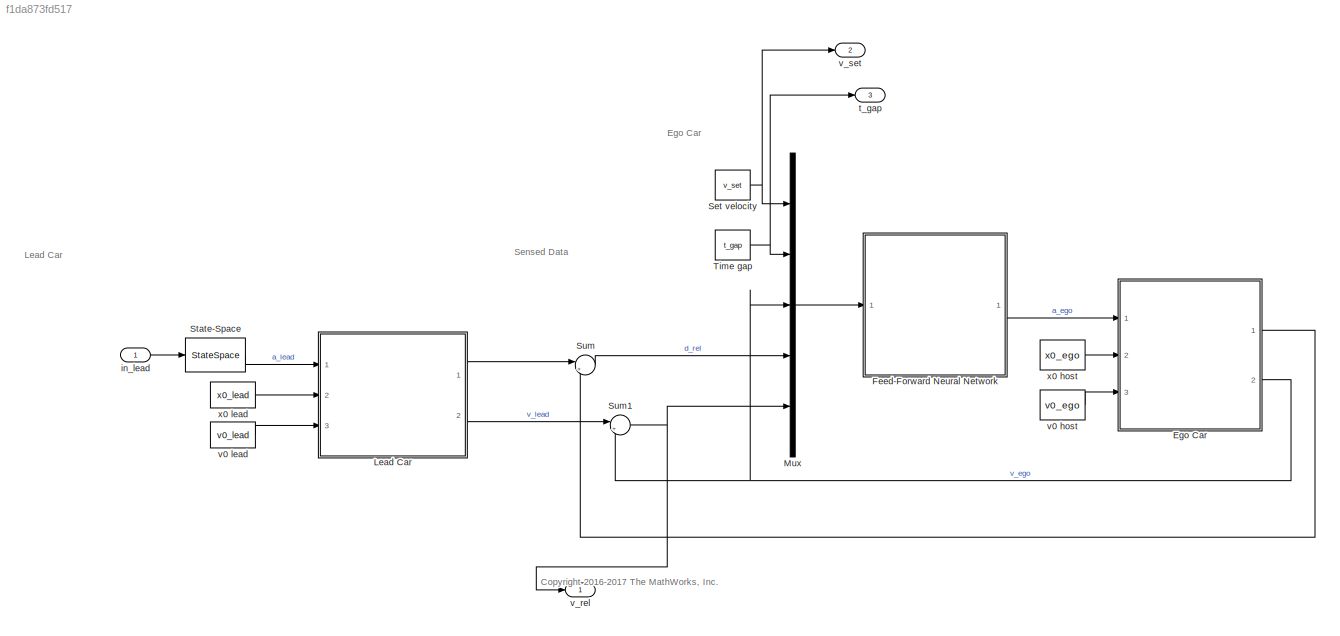
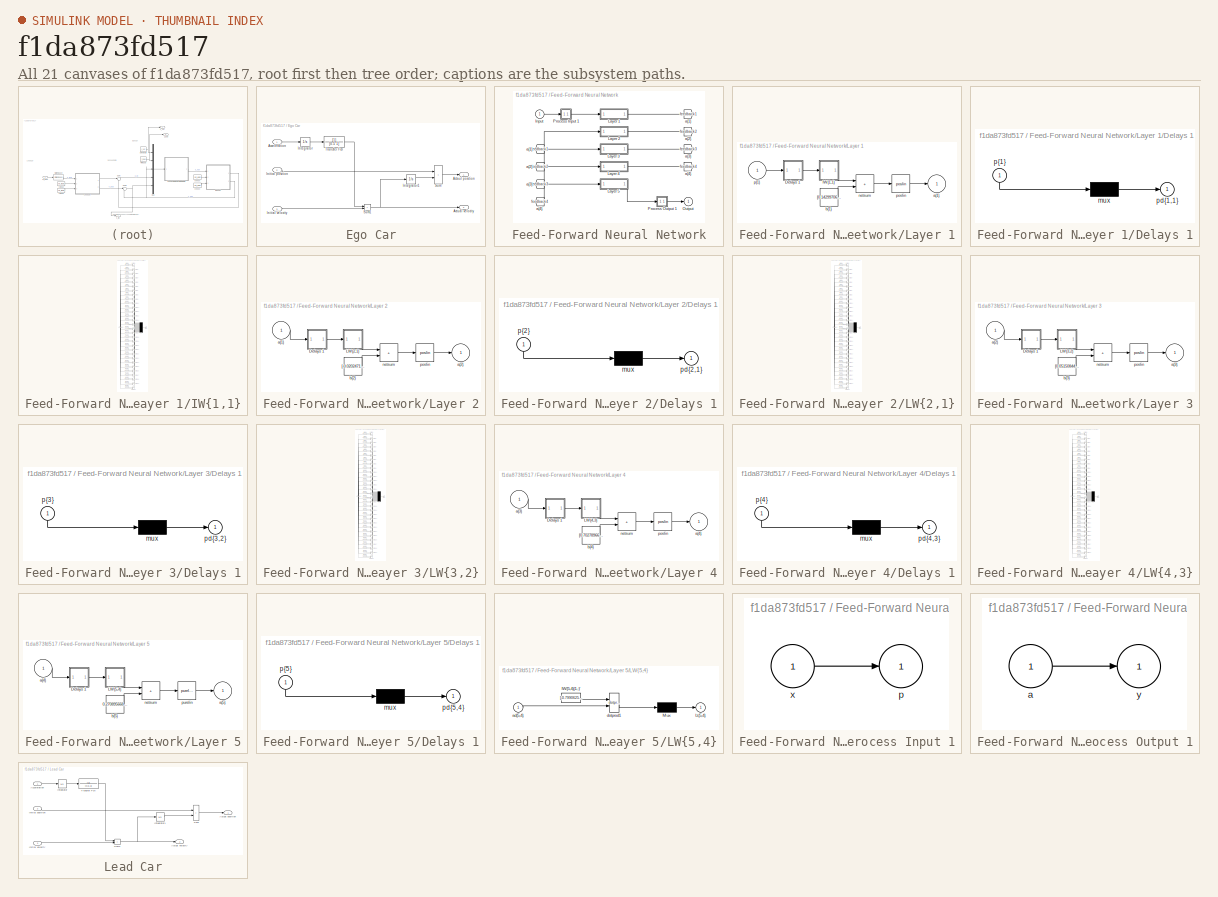
[diagram: thumbnail index - all 21 canvases of the model, root first then tree order]
MODEL slx_f1da873fd517
KIND model
CONFIG AbsTol = auto
CONFIG EnableMultiTasking = off
CONFIG FixedStep = auto
CONFIG MaxStep = auto
CONFIG MinStep = auto
CONFIG RelTol = 1e-3
CONFIG SampleTimeConstraint = Unconstrained
CONFIG SolverName = FixedStepAuto
CONFIG StartTime = 0.0
CONFIG StopTime = T
BLOCK [SubSystem] Ego Car
  Ports = [3, 2]
BLOCK [Inport] Ego Car/Acceleration
BLOCK [Outport] Ego Car/Actaul position
  VectorParamsAs1DForOutWhenUnconnected = off
BLOCK [Outport] Ego Car/Actual velocity
  Port = 2
  VectorParamsAs1DForOutWhenUnconnected = off
BLOCK [Inport] Ego Car/Initial position
  Port = 2
BLOCK [Inport] Ego Car/Initial velocity
  Port = 3
BLOCK [Integrator] Ego Car/Integrator
  Ports = [1, 1]
BLOCK [Integrator] Ego Car/Integrator1
  Ports = [1, 1]
BLOCK [Sum] Ego Car/Sum
  IconShape = rectangular
  Ports = [2, 1]
BLOCK [Sum] Ego Car/Sum1
  IconShape = rectangular
  Ports = [2, 1]
BLOCK [TransferFcn] Ego Car/Transfer Fcn
  Denominator = [0.5 1]
BLOCK [SubSystem] Feed-Forward Neural Network
  Ports = [1, 1]
BLOCK [From] Feed-Forward Neural Network/ a{1} 
  GotoTag = feedback1
BLOCK [From] Feed-Forward Neural Network/ a{2} 
  GotoTag = feedback2
BLOCK [From] Feed-Forward Neural Network/ a{3} 
  GotoTag = feedback3
BLOCK [From] Feed-Forward Neural Network/ a{4} 
  GotoTag = feedback4
BLOCK [Inport] Feed-Forward Neural Network/Input
  PortDimensions = 5
BLOCK [SubSystem] Feed-Forward Neural Network/Layer 1
  Ports = [1, 1]
BLOCK [SubSystem] Feed-Forward Neural Network/Layer 1/Delays 1
  Ports = [1, 1]
BLOCK [Mux] Feed-Forward Neural Network/Layer 1/Delays 1/mux
  Inputs = 1
  Ports = [1, 1]
BLOCK [Outport] Feed-Forward Neural Network/Layer 1/Delays 1/pd{1,1}
BLOCK [Inport] Feed-Forward Neural Network/Layer 1/Delays 1/p{1}
  NameLocation = left
  PortDimensions = 5
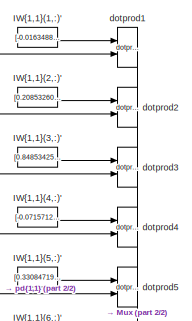
[diagram: Feed-Forward Neural Network/Layer 1/IW{1,1} - part 1/2, top center region]
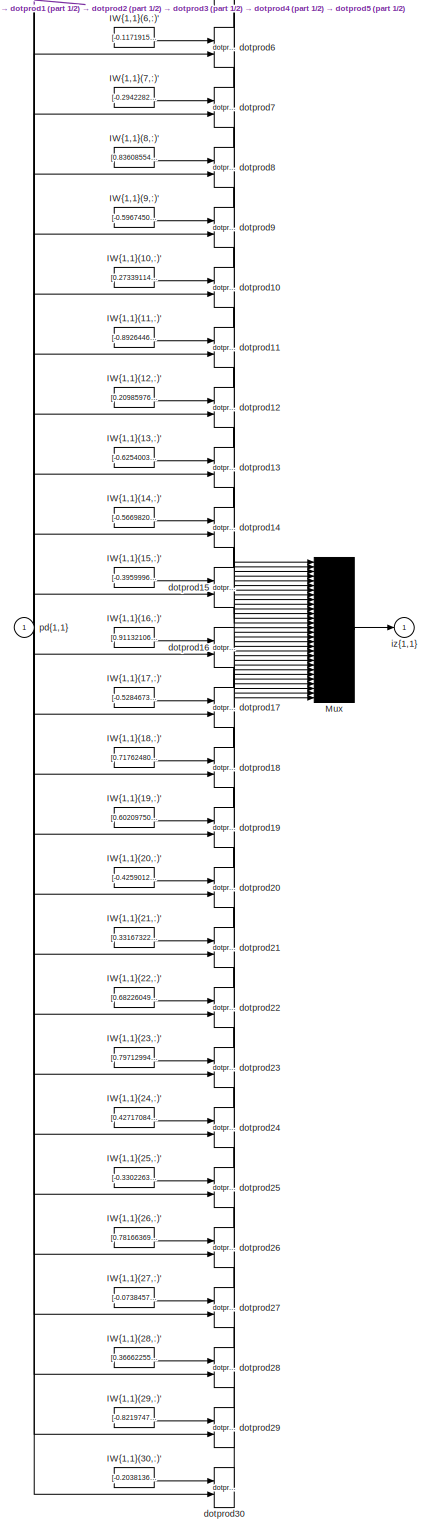
[diagram: Feed-Forward Neural Network/Layer 1/IW{1,1} - part 2/2, most of the canvas]
BLOCK [SubSystem] Feed-Forward Neural Network/Layer 1/IW{1,1}
  Ports = [1, 1]
BLOCK [Constant] Feed-Forward Neural Network/Layer 1/IW{1,1}/IW{1,1}(1,:)'
  Value = [-0.016348864794627569752005769032621174119412899017333984375;0.58945170534185498123491697697318159043788909912109375;0.62223975255874253154075859129079617559909820556640625;0.1934653922148874272135543606054852716624736785888671875;-0.80950614841756163286845549009740352630615234375]
BLOCK [Constant] Feed-Forward Neural Network/Layer 1/IW{1,1}/IW{1,1}(10,:)'
  Value = [0.27339114278349274655965928104706108570098876953125;0.38119671667823251670625950282556004822254180908203125;0.18870505019108485544876430139993317425251007080078125;0.90375772949083066354347693049930967390537261962890625;-0.5428971932510979758745861545321531593799591064453125]
BLOCK [Constant] Feed-Forward Neural Network/Layer 1/IW{1,1}/IW{1,1}(11,:)'
  Value = [-0.8926446655464401747082092697382904589176177978515625;0.8845496370824574849933696896187029778957366943359375;0.7395616497281454204681949704536236822605133056640625;-0.8940744596842968849870203484897501766681671142578125;0.0770776762263747361458854356897063553333282470703125]
BLOCK [Constant] Feed-Forward Neural Network/Layer 1/IW{1,1}/IW{1,1}(12,:)'
  Value = [0.209859760670765727041953141451813280582427978515625;-0.5616047521371048123484115421888418495655059814453125;0.318958017695896156595836146152578294277191162109375;-0.896219881756834535480038539390079677104949951171875;-0.9258660338526112365542530824313871562480926513671875]
BLOCK [Constant] Feed-Forward Neural Network/Layer 1/IW{1,1}/IW{1,1}(13,:)'
  Value = [-0.6254003821417650765823736946913413703441619873046875;-0.6271756605938865192229059175588190555572509765625;-0.6475467386765785260394068245659582316875457763671875;0.0132225712816771423518957817577756941318511962890625;-0.2262570570486828192002803916693665087223052978515625]
BLOCK [Constant] Feed-Forward Neural Network/Layer 1/IW{1,1}/IW{1,1}(14,:)'
  Value = [-0.566982013819175900692926006740890443325042724609375;-0.6307590215709435454982667579315602779388427734375;-0.8662372581485493494568572714342735707759857177734375;-0.5612673008213253655895869087544269859790802001953125;0.7183577974755228634506920570856891572475433349609375]
BLOCK [Constant] Feed-Forward Neural Network/Layer 1/IW{1,1}/IW{1,1}(15,:)'
  Value = [-0.395999658180173685906311220605857670307159423828125;0.7842621686287494231493155893986113369464874267578125;-0.1279065820545557397025504542398266494274139404296875;-0.8739822937605807862126994223217479884624481201171875;0.1557128711416975175296784072997979819774627685546875]
BLOCK [Constant] Feed-Forward Neural Network/Layer 1/IW{1,1}/IW{1,1}(16,:)'
  Value = [0.9113210609011643814625358572811819612979888916015625;0.5585383565378674308732342979055829346179962158203125;-0.306899508935774611995128680064226500689983367919921875;-0.69733879303160073437339860902284272015094757080078125;-0.366756307980850959626906160337966866791248321533203125]
BLOCK [Constant] Feed-Forward Neural Network/Layer 1/IW{1,1}/IW{1,1}(17,:)'
  Value = [-0.52846733281985358576804401309345848858356475830078125;-0.39778600121078022677778562865569256246089935302734375;-0.378980606737425451679968091411865316331386566162109375;0.8882981613257034947395140989101491868495941162109375;-0.1651214289297272264089855298152542673051357269287109375]
BLOCK [Constant] Feed-Forward Neural Network/Layer 1/IW{1,1}/IW{1,1}(18,:)'
  Value = [0.71762480696499475474325890900217927992343902587890625;-0.11777012084279447901025150713394396007061004638671875;0.84358901122831098096099822214455343782901763916015625;0.21138657678831040964695375805604271590709686279296875;0.81160313581814091943300581988296471536159515380859375]
BLOCK [Constant] Feed-Forward Neural Network/Layer 1/IW{1,1}/IW{1,1}(19,:)'
  Value = [0.60209750679335360956656586495228111743927001953125;0.422192539339560912736715181381441652774810791015625;0.484825280441626926819509435517829842865467071533203125;0.295470508444537094394632958938018418848514556884765625;0.6831392799188995557102543898508884012699127197265625]
BLOCK [Constant] Feed-Forward Neural Network/Layer 1/IW{1,1}/IW{1,1}(2,:)'
  Value = [0.2085326027051971620185355504872859455645084381103515625;0.46743509781805425706835421806317754089832305908203125;0.8456660211134447990843909792602062225341796875;0.50568835230536668401413180617964826524257659912109375;0.55841061645984790828833865816704928874969482421875]
BLOCK [Constant] Feed-Forward Neural Network/Layer 1/IW{1,1}/IW{1,1}(20,:)'
  Value = [-0.42590126661518212802803873273660428822040557861328125;-0.758341929862863306510689653805457055568695068359375;-0.11131539948992218158618783263591467402875423431396484375;0.54248689150169193684547508382820524275302886962890625;0.95455371106767861189013046896434389054775238037109375]
BLOCK [Constant] Feed-Forward Neural Network/Layer 1/IW{1,1}/IW{1,1}(21,:)'
  Value = [0.33167322999054726917478319592191837728023529052734375;0.5344727978107461918710896497941575944423675537109375;0.86799549350454940910282175536849536001682281494140625;-0.91147669524337182611617436123196966946125030517578125;0.5119532310996681712111922024632804095745086669921875]
BLOCK [Constant] Feed-Forward Neural Network/Layer 1/IW{1,1}/IW{1,1}(22,:)'
  Value = [0.682260495773466146829377976246178150177001953125;-0.71412330375820232131189868596266023814678192138671875;0.2498761068491218984011226211805478669703006744384765625;-0.94153970212574134013294724354636855423450469970703125;0.013119837664558424428218330604067887179553508758544921875]
BLOCK [Constant] Feed-Forward Neural Network/Layer 1/IW{1,1}/IW{1,1}(23,:)'
  Value = [0.79712994852874097251316243273322470486164093017578125;0.285294806728185024180532991522341035306453704833984375;-0.01066501588378851624050458468673241441138088703155517578125;0.10310187102544166037887407583184540271759033203125;-0.311036878905213753920833141819457523524761199951171875]
BLOCK [Constant] Feed-Forward Neural Network/Layer 1/IW{1,1}/IW{1,1}(24,:)'
  Value = [0.427170844843338615159922255770652554929256439208984375;-0.85006716981474850225453110397211275994777679443359375;0.2212659059230980551635781239383504725992679595947265625;-0.8758840642205976134704314972623251378536224365234375;0.8273883266380133161277399267419241368770599365234375]
BLOCK [Constant] Feed-Forward Neural Network/Layer 1/IW{1,1}/IW{1,1}(25,:)'
  Value = [-0.330226355181733766119833717311848886311054229736328125;0.793291119873950290042330379947088658809661865234375;-0.299153995304331121740659682473051361739635467529296875;0.403273430912328867403715548789477907121181488037109375;0.65950409514232266605660015557077713310718536376953125]
BLOCK [Constant] Feed-Forward Neural Network/Layer 1/IW{1,1}/IW{1,1}(26,:)'
  Value = [0.78166369353607922931814755429513752460479736328125;0.391907616641108902388879187128623016178607940673828125;0.293459568204906762201034098325180821120738983154296875;0.6551458098616749214926358035882003605365753173828125;0.03937571577761968255604330124697298742830753326416015625]
BLOCK [Constant] Feed-Forward Neural Network/Layer 1/IW{1,1}/IW{1,1}(27,:)'
  Value = [-0.07384570172655245678949853527228697203099727630615234375;-0.84733056124015637688984270425862632691860198974609375;-0.7950595410209240210264169945730827748775482177734375;0.290980086984922559079080883748247288167476654052734375;-0.265563862108366077752208411766332574188709259033203125]
BLOCK [Constant] Feed-Forward Neural Network/Layer 1/IW{1,1}/IW{1,1}(28,:)'
  Value = [0.36662255026555479187067021484836004674434661865234375;-0.83115159271200866886175617764820344746112823486328125;0.1215325504085490726513540948872105218470096588134765625;0.06671897703904615395398280952576897107064723968505859375;0.6283806960462214874496567063033580780029296875]
BLOCK [Constant] Feed-Forward Neural Network/Layer 1/IW{1,1}/IW{1,1}(29,:)'
  Value = [-0.8219747327968212058380004236823879182338714599609375;0.2261666954012735430978864314965903759002685546875;-0.65572243693596465874406931106932461261749267578125;-0.55952917400516799517617982928641140460968017578125;-0.9115199571919194720948098620283417403697967529296875]
BLOCK [Constant] Feed-Forward Neural Network/Layer 1/IW{1,1}/IW{1,1}(3,:)'
  Value = [0.84853425960109996051272673867060802876949310302734375;-0.9029284674226409901365286714280955493450164794921875;-0.7200212542108548330332951081800274550914764404296875;-0.30443055465674084825167255985434167087078094482421875;-0.4672724439177582400617438906920142471790313720703125]
BLOCK [Constant] Feed-Forward Neural Network/Layer 1/IW{1,1}/IW{1,1}(30,:)'
  Value = [-0.2038136668616654656460696060094051063060760498046875;0.496790964471498452947884061359218321740627288818359375;-0.46305803856318050737428393404115922749042510986328125;0.7343206256992094171920371081796474754810333251953125;0.56698495144661276157194151892326772212982177734375]
BLOCK [Constant] Feed-Forward Neural Network/Layer 1/IW{1,1}/IW{1,1}(4,:)'
  Value = [-0.0715712567564365242933632771382690407335758209228515625;-0.84661288404903245474741879661451093852519989013671875;-0.42165391696246412589488272715243510901927947998046875;-0.0180133014896767529311460975804948247969150543212890625;-0.444791880291387775603340060115442611277103424072265625]
BLOCK [Constant] Feed-Forward Neural Network/Layer 1/IW{1,1}/IW{1,1}(5,:)'
  Value = [0.330847193527340432961381111454102210700511932373046875;-0.95687682612489177724768296684487722814083099365234375;-0.45833394206452748864677460005623288452625274658203125;0.89661184436655982921138274832628667354583740234375;0.5448762958850512649888742089387960731983184814453125]
BLOCK [Constant] Feed-Forward Neural Network/Layer 1/IW{1,1}/IW{1,1}(6,:)'
  Value = [-0.11719154233607260995331245112538454122841358184814453125;-0.62694018243194238326765344027080573141574859619140625;0.8619272443790102489202809010748751461505889892578125;0.69855130967119549723065574653446674346923828125;0.167701525290279207514032577819307334721088409423828125]
BLOCK [Constant] Feed-Forward Neural Network/Layer 1/IW{1,1}/IW{1,1}(7,:)'
  Value = [-0.2942282349038845001842901183408685028553009033203125;-0.316543630520448093790264465496875345706939697265625;-0.1348655540251062490142430760897696018218994140625;-0.6756185702859074382331527885980904102325439453125;-0.17921650072238737294583188486285507678985595703125]
BLOCK [Constant] Feed-Forward Neural Network/Layer 1/IW{1,1}/IW{1,1}(8,:)'
  Value = [0.83608554936228618448268434804049320518970489501953125;-0.737236503084268246510646349634043872356414794921875;0.9178310334515187296489102664054371416568756103515625;0.201300730198561927952738415115163661539554595947265625;0.1500300891707601336211297393674612976610660552978515625]
BLOCK [Constant] Feed-Forward Neural Network/Layer 1/IW{1,1}/IW{1,1}(9,:)'
  Value = [-0.5967450785650887379318874081945978105068206787109375;-0.5767129246084474747391368509852327406406402587890625;-0.10942902424652256598847088753245770931243896484375;-0.44913076000964036182949712383560836315155029296875;-0.8650352660179201347290245394106023013591766357421875]
BLOCK [Mux] Feed-Forward Neural Network/Layer 1/IW{1,1}/Mux
  Inputs = 30
  Ports = [30, 1]
BLOCK [Reference] Feed-Forward Neural Network/Layer 1/IW{1,1}/dotprod1  REF=neural/Weight Functions/dotprod
  Ports = [2, 1]
  SourceBlock = neural/Weight Functions/dotprod
  SourceType = DOTPROD
BLOCK [Reference] Feed-Forward Neural Network/Layer 1/IW{1,1}/dotprod10  REF=neural/Weight Functions/dotprod
  Ports = [2, 1]
  SourceBlock = neural/Weight Functions/dotprod
  SourceType = DOTPROD
BLOCK [Reference] Feed-Forward Neural Network/Layer 1/IW{1,1}/dotprod11  REF=neural/Weight Functions/dotprod
  Ports = [2, 1]
  SourceBlock = neural/Weight Functions/dotprod
  SourceType = DOTPROD
BLOCK [Reference] Feed-Forward Neural Network/Layer 1/IW{1,1}/dotprod12  REF=neural/Weight Functions/dotprod
  Ports = [2, 1]
  SourceBlock = neural/Weight Functions/dotprod
  SourceType = DOTPROD
BLOCK [Reference] Feed-Forward Neural Network/Layer 1/IW{1,1}/dotprod13  REF=neural/Weight Functions/dotprod
  Ports = [2, 1]
  SourceBlock = neural/Weight Functions/dotprod
  SourceType = DOTPROD
BLOCK [Reference] Feed-Forward Neural Network/Layer 1/IW{1,1}/dotprod14  REF=neural/Weight Functions/dotprod
  Ports = [2, 1]
  SourceBlock = neural/Weight Functions/dotprod
  SourceType = DOTPROD
BLOCK [Reference] Feed-Forward Neural Network/Layer 1/IW{1,1}/dotprod15  REF=neural/Weight Functions/dotprod
  Ports = [2, 1]
  SourceBlock = neural/Weight Functions/dotprod
  SourceType = DOTPROD
BLOCK [Reference] Feed-Forward Neural Network/Layer 1/IW{1,1}/dotprod16  REF=neural/Weight Functions/dotprod
  Ports = [2, 1]
  SourceBlock = neural/Weight Functions/dotprod
  SourceType = DOTPROD
BLOCK [Reference] Feed-Forward Neural Network/Layer 1/IW{1,1}/dotprod17  REF=neural/Weight Functions/dotprod
  Ports = [2, 1]
  SourceBlock = neural/Weight Functions/dotprod
  SourceType = DOTPROD
BLOCK [Reference] Feed-Forward Neural Network/Layer 1/IW{1,1}/dotprod18  REF=neural/Weight Functions/dotprod
  Ports = [2, 1]
  SourceBlock = neural/Weight Functions/dotprod
  SourceType = DOTPROD
BLOCK [Reference] Feed-Forward Neural Network/Layer 1/IW{1,1}/dotprod19  REF=neural/Weight Functions/dotprod
  Ports = [2, 1]
  SourceBlock = neural/Weight Functions/dotprod
  SourceType = DOTPROD
BLOCK [Reference] Feed-Forward Neural Network/Layer 1/IW{1,1}/dotprod2  REF=neural/Weight Functions/dotprod
  Ports = [2, 1]
  SourceBlock = neural/Weight Functions/dotprod
  SourceType = DOTPROD
BLOCK [Reference] Feed-Forward Neural Network/Layer 1/IW{1,1}/dotprod20  REF=neural/Weight Functions/dotprod
  Ports = [2, 1]
  SourceBlock = neural/Weight Functions/dotprod
  SourceType = DOTPROD
BLOCK [Reference] Feed-Forward Neural Network/Layer 1/IW{1,1}/dotprod21  REF=neural/Weight Functions/dotprod
  Ports = [2, 1]
  SourceBlock = neural/Weight Functions/dotprod
  SourceType = DOTPROD
BLOCK [Reference] Feed-Forward Neural Network/Layer 1/IW{1,1}/dotprod22  REF=neural/Weight Functions/dotprod
  Ports = [2, 1]
  SourceBlock = neural/Weight Functions/dotprod
  SourceType = DOTPROD
BLOCK [Reference] Feed-Forward Neural Network/Layer 1/IW{1,1}/dotprod23  REF=neural/Weight Functions/dotprod
  Ports = [2, 1]
  SourceBlock = neural/Weight Functions/dotprod
  SourceType = DOTPROD
BLOCK [Reference] Feed-Forward Neural Network/Layer 1/IW{1,1}/dotprod24  REF=neural/Weight Functions/dotprod
  Ports = [2, 1]
  SourceBlock = neural/Weight Functions/dotprod
  SourceType = DOTPROD
BLOCK [Reference] Feed-Forward Neural Network/Layer 1/IW{1,1}/dotprod25  REF=neural/Weight Functions/dotprod
  Ports = [2, 1]
  SourceBlock = neural/Weight Functions/dotprod
  SourceType = DOTPROD
BLOCK [Reference] Feed-Forward Neural Network/Layer 1/IW{1,1}/dotprod26  REF=neural/Weight Functions/dotprod
  Ports = [2, 1]
  SourceBlock = neural/Weight Functions/dotprod
  SourceType = DOTPROD
BLOCK [Reference] Feed-Forward Neural Network/Layer 1/IW{1,1}/dotprod27  REF=neural/Weight Functions/dotprod
  Ports = [2, 1]
  SourceBlock = neural/Weight Functions/dotprod
  SourceType = DOTPROD
BLOCK [Reference] Feed-Forward Neural Network/Layer 1/IW{1,1}/dotprod28  REF=neural/Weight Functions/dotprod
  Ports = [2, 1]
  SourceBlock = neural/Weight Functions/dotprod
  SourceType = DOTPROD
BLOCK [Reference] Feed-Forward Neural Network/Layer 1/IW{1,1}/dotprod29  REF=neural/Weight Functions/dotprod
  Ports = [2, 1]
  SourceBlock = neural/Weight Functions/dotprod
  SourceType = DOTPROD
BLOCK [Reference] Feed-Forward Neural Network/Layer 1/IW{1,1}/dotprod3  REF=neural/Weight Functions/dotprod
  Ports = [2, 1]
  SourceBlock = neural/Weight Functions/dotprod
  SourceType = DOTPROD
BLOCK [Reference] Feed-Forward Neural Network/Layer 1/IW{1,1}/dotprod30  REF=neural/Weight Functions/dotprod
  Ports = [2, 1]
  SourceBlock = neural/Weight Functions/dotprod
  SourceType = DOTPROD
BLOCK [Reference] Feed-Forward Neural Network/Layer 1/IW{1,1}/dotprod4  REF=neural/Weight Functions/dotprod
  Ports = [2, 1]
  SourceBlock = neural/Weight Functions/dotprod
  SourceType = DOTPROD
BLOCK [Reference] Feed-Forward Neural Network/Layer 1/IW{1,1}/dotprod5  REF=neural/Weight Functions/dotprod
  Ports = [2, 1]
  SourceBlock = neural/Weight Functions/dotprod
  SourceType = DOTPROD
BLOCK [Reference] Feed-Forward Neural Network/Layer 1/IW{1,1}/dotprod6  REF=neural/Weight Functions/dotprod
  Ports = [2, 1]
  SourceBlock = neural/Weight Functions/dotprod
  SourceType = DOTPROD
BLOCK [Reference] Feed-Forward Neural Network/Layer 1/IW{1,1}/dotprod7  REF=neural/Weight Functions/dotprod
  Ports = [2, 1]
  SourceBlock = neural/Weight Functions/dotprod
  SourceType = DOTPROD
BLOCK [Reference] Feed-Forward Neural Network/Layer 1/IW{1,1}/dotprod8  REF=neural/Weight Functions/dotprod
  Ports = [2, 1]
  SourceBlock = neural/Weight Functions/dotprod
  SourceType = DOTPROD
BLOCK [Reference] Feed-Forward Neural Network/Layer 1/IW{1,1}/dotprod9  REF=neural/Weight Functions/dotprod
  Ports = [2, 1]
  SourceBlock = neural/Weight Functions/dotprod
  SourceType = DOTPROD
BLOCK [Outport] Feed-Forward Neural Network/Layer 1/IW{1,1}/iz{1,1}
BLOCK [Inport] Feed-Forward Neural Network/Layer 1/IW{1,1}/pd{1,1}
  PortDimensions = 5
BLOCK [Outport] Feed-Forward Neural Network/Layer 1/a{1}
  InitialOutput = [0;0;0;0;0;0;0;0;0;0;0;0;0;0;0;0;0;0;0;0;0;0;0;0;0;0;0;0;0;0]
BLOCK [Constant] Feed-Forward Neural Network/Layer 1/b{1}
  Value = [0.142997068936983662279516238413634710013866424560546875;-0.817221398687641542579740416840650141239166259765625;-0.044590666192341921192365816750680096447467803955078125;0.1536882581282026094537940252848784439265727996826171875;-0.1630392733003715732831295781579683534801006317138671875;0.1986898276807931296161768841557204723358154296875;-0.927077481658661550767419612384401261806488037109375;-0.15...<+1271ch>
BLOCK [Sum] Feed-Forward Neural Network/Layer 1/netsum
  IconShape = rectangular
  InputSameDT = on
  Inputs = 2
  OutDataTypeStr = Inherit: Same as first input
  Ports = [2, 1]
  SaturateOnIntegerOverflow = on
BLOCK [Reference] Feed-Forward Neural Network/Layer 1/poslin  REF=neural/Transfer Functions/poslin
  Ports = [1, 1]
  SourceBlock = neural/Transfer Functions/poslin
  SourceType = POSLIN
BLOCK [Inport] Feed-Forward Neural Network/Layer 1/p{1}
  PortDimensions = 5
BLOCK [SubSystem] Feed-Forward Neural Network/Layer 2
  Ports = [1, 1]
BLOCK [SubSystem] Feed-Forward Neural Network/Layer 2/Delays 1
  Ports = [1, 1]
BLOCK [Mux] Feed-Forward Neural Network/Layer 2/Delays 1/mux
  Inputs = 1
  Ports = [1, 1]
BLOCK [Outport] Feed-Forward Neural Network/Layer 2/Delays 1/pd{2,1}
BLOCK [Inport] Feed-Forward Neural Network/Layer 2/Delays 1/p{2}
  NameLocation = left
  PortDimensions = 30
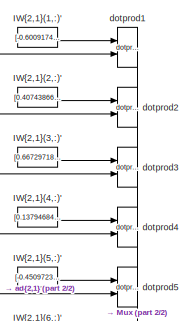
[diagram: Feed-Forward Neural Network/Layer 2/LW{2,1} - part 1/2, top center region]
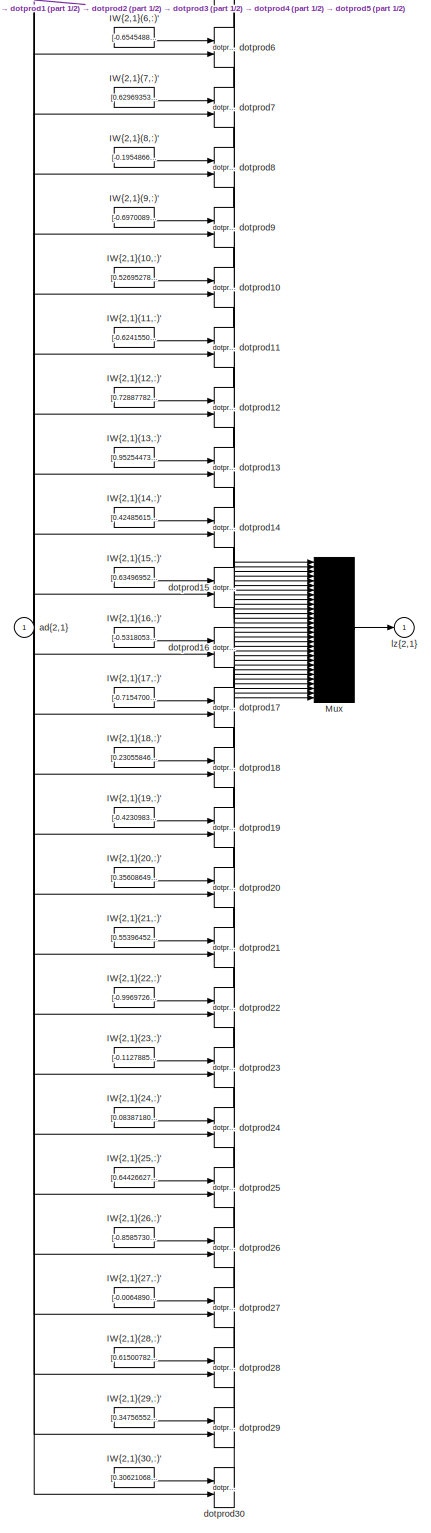
[diagram: Feed-Forward Neural Network/Layer 2/LW{2,1} - part 2/2, most of the canvas]
BLOCK [SubSystem] Feed-Forward Neural Network/Layer 2/LW{2,1}
  Ports = [1, 1]
BLOCK [Constant] Feed-Forward Neural Network/Layer 2/LW{2,1}/IW{2,1}(1,:)'
  Value = [-0.60091749733480515072159278133767656981945037841796875;0.1613191215406274137134090551626286469399929046630859375;-0.1346100537789779172381798844071454368531703948974609375;-0.0805808784582011938812939888521214015781879425048828125;0.66951081369742959648050373289152048528194427490234375;0.43592035126735984018608860424137674272060394287109375;0.8003716382903218740096917827031575143337249755859375...<+1268ch>
BLOCK [Constant] Feed-Forward Neural Network/Layer 2/LW{2,1}/IW{2,1}(10,:)'
  Value = [0.5269527830804603407699460149160586297512054443359375;0.21306968722853769637737286757328547537326812744140625;0.607887164861355966394285132992081344127655029296875;-0.54901493020329628080844486248679459095001220703125;0.7288292912149405555766179531929083168506622314453125;0.0062494709653474998789501881901742308400571346282958984375;0.58196913945994577233022937434725463390350341796875;0.404856574...<+1298ch>
BLOCK [Constant] Feed-Forward Neural Network/Layer 2/LW{2,1}/IW{2,1}(11,:)'
  Value = [-0.6241550543988605426193316816352307796478271484375;0.359136882095238973988671205006539821624755859375;0.856782938419211603786607156507670879364013671875;0.7611338547510808627549749871832318603992462158203125;-0.0080649008301967479994676324395186384208500385284423828125;-0.02984885971278782024196374322855263017117977142333984375;-0.3072752893918242467208301604841835796833038330078125;-0.84696150...<+1269ch>
BLOCK [Constant] Feed-Forward Neural Network/Layer 2/LW{2,1}/IW{2,1}(12,:)'
  Value = [0.7288778204578736374941172471153549849987030029296875;-0.246558885810921335490775163634680211544036865234375;-0.883749838558860023596253085997886955738067626953125;-0.777022282170124700684255003579892218112945556640625;-0.2099884366155959636301986392936669290065765380859375;-0.816919034093095408621820752159692347049713134765625;-0.3245615158282946222101372768520377576351165771484375;-0.447772883...<+1253ch>
BLOCK [Constant] Feed-Forward Neural Network/Layer 2/LW{2,1}/IW{2,1}(13,:)'
  Value = [0.95254473242578463487717499447171576321125030517578125;-0.11671683583998278266324888363669742830097675323486328125;0.7454492544906725637332556289038620889186859130859375;0.98922913135351675517625835709623061120510101318359375;0.195174897777343925309168071180465631186962127685546875;0.4534449177903174810211339718080125749111175537109375;0.2237893275941671422657464063377119600772857666015625;-0.06...<+1291ch>
BLOCK [Constant] Feed-Forward Neural Network/Layer 2/LW{2,1}/IW{2,1}(14,:)'
  Value = [0.4248561548001530407958625801256857812404632568359375;0.5932154064596044662494023214094340801239013671875;-0.2221794361564330966274383172276429831981658935546875;-0.1823339782267663355952436177176423370838165283203125;0.033749041477570518310358238522894680500030517578125;0.5372036631468934952948757199919782578945159912109375;0.564004610667769856746645018574781715869903564453125;-0.40225017177371...<+1232ch>
BLOCK [Constant] Feed-Forward Neural Network/Layer 2/LW{2,1}/IW{2,1}(15,:)'
  Value = [0.63496952253851279834861998097039759159088134765625;0.7271139127729966400437433549086563289165496826171875;0.0892984558146405760226116399280726909637451171875;0.4058351513889359996056782620144076645374298095703125;0.0447024399103155278822896434576250612735748291015625;0.0302808487917476387707438334473408758640289306640625;-0.584474152107745670292615614016540348529815673828125;-0.4608784996791928...<+1237ch>
BLOCK [Constant] Feed-Forward Neural Network/Layer 2/LW{2,1}/IW{2,1}(16,:)'
  Value = [-0.5318053999885903326827474302262999117374420166015625;0.2510196063050773584990338349598459899425506591796875;0.7417930482801107228141290761413984000682830810546875;-0.3137640685028968423608830562443472445011138916015625;-0.5196725737963994173895798667217604815959930419921875;0.2500285372603148204007084132172167301177978515625;-0.7076851517850071271453771259984932839870452880859375;-0.9115503356...<+1241ch>
BLOCK [Constant] Feed-Forward Neural Network/Layer 2/LW{2,1}/IW{2,1}(17,:)'
  Value = [-0.71547002184601071750336132026859559118747711181640625;0.439319201106655732314010265326942317187786102294921875;-0.7165709524232415361666426178999245166778564453125;0.316208278670049025560473410223494283854961395263671875;0.96975060144627123204230656483559869229793548583984375;0.0270242225026594284909009502371191047132015228271484375;-0.05785673336225993779180498677305877208709716796875;-0.3595...<+1274ch>
BLOCK [Constant] Feed-Forward Neural Network/Layer 2/LW{2,1}/IW{2,1}(18,:)'
  Value = [0.2305584608023455717162875089343287982046604156494140625;0.9271852213187461444476866745389997959136962890625;-0.83598462262791228827296663439483381807804107666015625;0.00693699269640740169562409533909885794855654239654541015625;0.040856097646256799016395433454817975871264934539794921875;-0.859284875724499297433567335247062146663665771484375;0.41357694057129190667865259456448256969451904296875;0....<+1292ch>
BLOCK [Constant] Feed-Forward Neural Network/Layer 2/LW{2,1}/IW{2,1}(19,:)'
  Value = [-0.423098365812307530831049007247202098369598388671875;-0.4904063181784932279327904325327835977077484130859375;-0.0129916244764991528626296712900511920452117919921875;0.4528260008477793530090593776549212634563446044921875;-0.4693671023223224825215993405436165630817413330078125;-0.4355336519282462237612207900383509695529937744140625;-0.40824113949487550456751705496571958065032958984375;0.902194481...<+1256ch>
BLOCK [Constant] Feed-Forward Neural Network/Layer 2/LW{2,1}/IW{2,1}(2,:)'
  Value = [0.407438663595419303664613153159734793007373809814453125;-0.77736596096190113680535205276100896298885345458984375;-0.54776883801082310032626310203340835869312286376953125;0.452107477487001252480780522091663442552089691162109375;0.1979274342247685225526510066629271022975444793701171875;0.9155865518065888775112171060754917562007904052734375;-0.0703110783855016574506180404569022357463836669921875;0....<+1286ch>
BLOCK [Constant] Feed-Forward Neural Network/Layer 2/LW{2,1}/IW{2,1}(20,:)'
  Value = [0.3560864912242553970145308994688093662261962890625;-0.828345395016999663795331798610277473926544189453125;0.2446588757865205965291721668108948506414890289306640625;0.62683519232041629010154792922548949718475341796875;0.307860083528769756799903234423254616558551788330078125;-0.277273066590928152219674984735320322215557098388671875;0.7593063889360587292998161501600407063961029052734375;0.146896601...<+1265ch>
BLOCK [Constant] Feed-Forward Neural Network/Layer 2/LW{2,1}/IW{2,1}(21,:)'
  Value = [0.5539645206231824658971163444221019744873046875;-0.112557827521285125360606116373674012720584869384765625;0.8842243370872575614072275129728950560092926025390625;-0.56147829372635893463439060724340379238128662109375;0.5029922272339704125698744974215514957904815673828125;0.318292720854433330845978389334050007164478302001953125;-0.70277696932276967345387674868106842041015625;-0.29781151134214972620...<+1246ch>
BLOCK [Constant] Feed-Forward Neural Network/Layer 2/LW{2,1}/IW{2,1}(22,:)'
  Value = [-0.99697267703195502352997436901205219328403472900390625;-0.78941812214817097537178369748289696872234344482421875;0.2237247099802861793893526964893680997192859649658203125;-0.045293102735478651954537099300068803131580352783203125;-0.413620511760713738258488092469633556902408599853515625;-0.57882092457748390845750918742851354181766510009765625;0.6214311395596980869271419578581117093563079833984375...<+1279ch>
BLOCK [Constant] Feed-Forward Neural Network/Layer 2/LW{2,1}/IW{2,1}(23,:)'
  Value = [-0.11278850849088095653627306091948412358760833740234375;-0.363952409263012921503133156875264830887317657470703125;0.1652327306699506725973236598292714916169643402099609375;-0.08914099745225191606667891619508736766874790191650390625;0.336239605241705763472026546878623776137828826904296875;-0.98880154688203403257062973352731205523014068603515625;-0.7038496054331497830958142003510147333145141601562...<+1290ch>
BLOCK [Constant] Feed-Forward Neural Network/Layer 2/LW{2,1}/IW{2,1}(24,:)'
  Value = [0.083871803425876245707826228681369684636592864990234375;0.2275511531819739141635494661386474035680294036865234375;0.1849892285930385960046606896867160685360431671142578125;0.87756436543156279839195121894590556621551513671875;0.08558723416280218654339506656469893641769886016845703125;0.65231258420648730034230311503051780164241790771484375;-0.885936598847294032310628608684055507183074951171875;-0....<+1273ch>
BLOCK [Constant] Feed-Forward Neural Network/Layer 2/LW{2,1}/IW{2,1}(25,:)'
  Value = [0.64426627341455244835088933541555888950824737548828125;0.9948168647099233652397742844186723232269287109375;-0.85303971693956814892345619227853603661060333251953125;0.406921729420667233068087398351053707301616668701171875;0.9474974990342908132134880361263640224933624267578125;-0.405802875327557988072157968417741358280181884765625;0.1197239036544812673668047864339314401149749755859375;0.7343157042...<+1269ch>
BLOCK [Constant] Feed-Forward Neural Network/Layer 2/LW{2,1}/IW{2,1}(26,:)'
  Value = [-0.8585730488988827513452406492433510720729827880859375;-0.55270517732823609691195088089443743228912353515625;-0.946949545153779492778767234995029866695404052734375;0.900687980501257090537592375767417252063751220703125;-0.918399378986091807774982953560538589954376220703125;-0.6750207051103618294263242205488495528697967529296875;-0.60312003575525618970232244464568793773651123046875;0.3407444275782...<+1236ch>
BLOCK [Constant] Feed-Forward Neural Network/Layer 2/LW{2,1}/IW{2,1}(27,:)'
  Value = [-0.006489043100030233122976763837641556165181100368499755859375;-0.8111718058090231497914146530092693865299224853515625;0.98376179411873054814208217067061923444271087646484375;-0.0007654649594176390729749481778299013967625796794891357421875;-0.485919312458814534050333122650044970214366912841796875;0.5653224466809290138513688361854292452335357666015625;-0.482373692958404154396134799753781408071517...<+1304ch>
BLOCK [Constant] Feed-Forward Neural Network/Layer 2/LW{2,1}/IW{2,1}(28,:)'
  Value = [0.6150078235516520663850315031595528125762939453125;-0.0679258508672131444683373047155328094959259033203125;-0.7340153616845797035495024829288013279438018798828125;0.601274033557877896072341172839514911174774169921875;-0.708367333506738194870422375970520079135894775390625;-0.5312301565915671375250894925557076930999755859375;0.9574351764641537698707907111383974552154541015625;-0.113951896287462384...<+1237ch>
BLOCK [Constant] Feed-Forward Neural Network/Layer 2/LW{2,1}/IW{2,1}(29,:)'
  Value = [0.347565524661230973446635061918641440570354461669921875;0.73548792027046128172429462210857309401035308837890625;0.50257163276540139928982853234629146754741668701171875;0.3999504852868083215611250125220976769924163818359375;-0.406422003191967695645558933392749167978763580322265625;-0.39208456998055429831850915434188209474086761474609375;0.5179805356346047773286045412532985210418701171875;-0.48569...<+1273ch>
BLOCK [Constant] Feed-Forward Neural Network/Layer 2/LW{2,1}/IW{2,1}(3,:)'
  Value = [0.6672971803269078794329516313155181705951690673828125;-0.9541200970980252549225042457692325115203857421875;0.56884450793631824438989497139118611812591552734375;-0.673469498900036711575012304820120334625244140625;-0.4168863252571723965189676164300180971622467041015625;-0.8011184343075614666673800456919707357883453369140625;0.673918066893107958748032615403644740581512451171875;0.384683403393245360...<+1236ch>
BLOCK [Constant] Feed-Forward Neural Network/Layer 2/LW{2,1}/IW{2,1}(30,:)'
  Value = [0.306210687753249610754124887534999288618564605712890625;-0.5513218020562449250832059988169930875301361083984375;0.99040370038759706350361966542550362646579742431640625;0.4023666921253028494476211562869139015674591064453125;-0.81089702345204639488684961179387755692005157470703125;0.306609998635547942313905878108926117420196533203125;-0.9617883795608139774202527405577711760997772216796875;-0.51743...<+1274ch>
BLOCK [Constant] Feed-Forward Neural Network/Layer 2/LW{2,1}/IW{2,1}(4,:)'
  Value = [0.1379468427090365378884229130562744103372097015380859375;-0.006981225831513892220170358626774032018147408962249755859375;0.5879062635874834352733842024463228881359100341796875;-0.0161638763037694789537201955909040407277643680572509765625;0.0378124881746915442182199740273063071072101593017578125;0.1618898447866724821242456755499006249010562896728515625;-0.43843915425910351402194464753847569227218...<+1287ch>
BLOCK [Constant] Feed-Forward Neural Network/Layer 2/LW{2,1}/IW{2,1}(5,:)'
  Value = [-0.4509723760340194065321384186972863972187042236328125;-0.3864440181777084593051085903425700962543487548828125;-0.7764514012183847402326364317559637129306793212890625;0.544071555622127167595181163051165640354156494140625;-0.7530718228354105203692370196222327649593353271484375;-0.028223478881141961238654403132386505603790283203125;-0.3320585698793780959903187977033667266368865966796875;-0.9789712...<+1254ch>
BLOCK [Constant] Feed-Forward Neural Network/Layer 2/LW{2,1}/IW{2,1}(6,:)'
  Value = [-0.65454888552973355952957490444532595574855804443359375;-0.3250659772650335010979461003444157540798187255859375;0.8595156624935811340293412285973317921161651611328125;0.80132231111688534408443729262216947972774505615234375;0.55893896862971192973645884194411337375640869140625;0.31134961537009619991778208714094944298267364501953125;0.3292864791577330141336688029696233570575714111328125;0.856491272...<+1265ch>
BLOCK [Constant] Feed-Forward Neural Network/Layer 2/LW{2,1}/IW{2,1}(7,:)'
  Value = [0.629693536988697122325220334460027515888214111328125;-0.70687220087491819953129379427991807460784912109375;-0.7267466177448198560995251682470552623271942138671875;-0.3997850056563170273449259184417314827442169189453125;-0.012311093242325821250915396376512944698333740234375;-0.8862919462242089263526167997042648494243621826171875;-0.4494869672921015801847488546627573668956756591796875;-0.819869739...<+1247ch>
BLOCK [Constant] Feed-Forward Neural Network/Layer 2/LW{2,1}/IW{2,1}(8,:)'
  Value = [-0.195486693135055844550151959992945194244384765625;0.3205946418105296569223128244630061089992523193359375;0.2527630587124234384788223906070925295352935791015625;0.699752601071677471367138423374854028224945068359375;-0.726530879223592052085223258472979068756103515625;0.6939108245763119242610628134571015834808349609375;0.977285724752936513226586612290702760219573974609375;0.17930308618093593331366...<+1239ch>
BLOCK [Constant] Feed-Forward Neural Network/Layer 2/LW{2,1}/IW{2,1}(9,:)'
  Value = [-0.6970089456226367108371277936385013163089752197265625;-0.5047709114491933934942835549009032547473907470703125;-0.5393819811766669136687823993270285427570343017578125;0.6062709800574654916971439888584427535533905029296875;-0.71584564845481590822373618721030652523040771484375;-0.661255673932205301213116399594582617282867431640625;0.1344196516488571635505877566174603998661041259765625;-0.644857292...<+1253ch>
BLOCK [Mux] Feed-Forward Neural Network/Layer 2/LW{2,1}/Mux
  Inputs = 30
  Ports = [30, 1]
BLOCK [Inport] Feed-Forward Neural Network/Layer 2/LW{2,1}/ad{2,1}
  PortDimensions = 30
BLOCK [Reference] Feed-Forward Neural Network/Layer 2/LW{2,1}/dotprod1  REF=neural/Weight Functions/dotprod
  Ports = [2, 1]
  SourceBlock = neural/Weight Functions/dotprod
  SourceType = DOTPROD
BLOCK [Reference] Feed-Forward Neural Network/Layer 2/LW{2,1}/dotprod10  REF=neural/Weight Functions/dotprod
  Ports = [2, 1]
  SourceBlock = neural/Weight Functions/dotprod
  SourceType = DOTPROD
BLOCK [Reference] Feed-Forward Neural Network/Layer 2/LW{2,1}/dotprod11  REF=neural/Weight Functions/dotprod
  Ports = [2, 1]
  SourceBlock = neural/Weight Functions/dotprod
  SourceType = DOTPROD
BLOCK [Reference] Feed-Forward Neural Network/Layer 2/LW{2,1}/dotprod12  REF=neural/Weight Functions/dotprod
  Ports = [2, 1]
  SourceBlock = neural/Weight Functions/dotprod
  SourceType = DOTPROD
BLOCK [Reference] Feed-Forward Neural Network/Layer 2/LW{2,1}/dotprod13  REF=neural/Weight Functions/dotprod
  Ports = [2, 1]
  SourceBlock = neural/Weight Functions/dotprod
  SourceType = DOTPROD
BLOCK [Reference] Feed-Forward Neural Network/Layer 2/LW{2,1}/dotprod14  REF=neural/Weight Functions/dotprod
  Ports = [2, 1]
  SourceBlock = neural/Weight Functions/dotprod
  SourceType = DOTPROD
BLOCK [Reference] Feed-Forward Neural Network/Layer 2/LW{2,1}/dotprod15  REF=neural/Weight Functions/dotprod
  Ports = [2, 1]
  SourceBlock = neural/Weight Functions/dotprod
  SourceType = DOTPROD
BLOCK [Reference] Feed-Forward Neural Network/Layer 2/LW{2,1}/dotprod16  REF=neural/Weight Functions/dotprod
  Ports = [2, 1]
  SourceBlock = neural/Weight Functions/dotprod
  SourceType = DOTPROD
BLOCK [Reference] Feed-Forward Neural Network/Layer 2/LW{2,1}/dotprod17  REF=neural/Weight Functions/dotprod
  Ports = [2, 1]
  SourceBlock = neural/Weight Functions/dotprod
  SourceType = DOTPROD
BLOCK [Reference] Feed-Forward Neural Network/Layer 2/LW{2,1}/dotprod18  REF=neural/Weight Functions/dotprod
  Ports = [2, 1]
  SourceBlock = neural/Weight Functions/dotprod
  SourceType = DOTPROD
BLOCK [Reference] Feed-Forward Neural Network/Layer 2/LW{2,1}/dotprod19  REF=neural/Weight Functions/dotprod
  Ports = [2, 1]
  SourceBlock = neural/Weight Functions/dotprod
  SourceType = DOTPROD
BLOCK [Reference] Feed-Forward Neural Network/Layer 2/LW{2,1}/dotprod2  REF=neural/Weight Functions/dotprod
  Ports = [2, 1]
  SourceBlock = neural/Weight Functions/dotprod
  SourceType = DOTPROD
BLOCK [Reference] Feed-Forward Neural Network/Layer 2/LW{2,1}/dotprod20  REF=neural/Weight Functions/dotprod
  Ports = [2, 1]
  SourceBlock = neural/Weight Functions/dotprod
  SourceType = DOTPROD
BLOCK [Reference] Feed-Forward Neural Network/Layer 2/LW{2,1}/dotprod21  REF=neural/Weight Functions/dotprod
  Ports = [2, 1]
  SourceBlock = neural/Weight Functions/dotprod
  SourceType = DOTPROD
BLOCK [Reference] Feed-Forward Neural Network/Layer 2/LW{2,1}/dotprod22  REF=neural/Weight Functions/dotprod
  Ports = [2, 1]
  SourceBlock = neural/Weight Functions/dotprod
  SourceType = DOTPROD
BLOCK [Reference] Feed-Forward Neural Network/Layer 2/LW{2,1}/dotprod23  REF=neural/Weight Functions/dotprod
  Ports = [2, 1]
  SourceBlock = neural/Weight Functions/dotprod
  SourceType = DOTPROD
BLOCK [Reference] Feed-Forward Neural Network/Layer 2/LW{2,1}/dotprod24  REF=neural/Weight Functions/dotprod
  Ports = [2, 1]
  SourceBlock = neural/Weight Functions/dotprod
  SourceType = DOTPROD
BLOCK [Reference] Feed-Forward Neural Network/Layer 2/LW{2,1}/dotprod25  REF=neural/Weight Functions/dotprod
  Ports = [2, 1]
  SourceBlock = neural/Weight Functions/dotprod
  SourceType = DOTPROD
BLOCK [Reference] Feed-Forward Neural Network/Layer 2/LW{2,1}/dotprod26  REF=neural/Weight Functions/dotprod
  Ports = [2, 1]
  SourceBlock = neural/Weight Functions/dotprod
  SourceType = DOTPROD
BLOCK [Reference] Feed-Forward Neural Network/Layer 2/LW{2,1}/dotprod27  REF=neural/Weight Functions/dotprod
  Ports = [2, 1]
  SourceBlock = neural/Weight Functions/dotprod
  SourceType = DOTPROD
BLOCK [Reference] Feed-Forward Neural Network/Layer 2/LW{2,1}/dotprod28  REF=neural/Weight Functions/dotprod
  Ports = [2, 1]
  SourceBlock = neural/Weight Functions/dotprod
  SourceType = DOTPROD
BLOCK [Reference] Feed-Forward Neural Network/Layer 2/LW{2,1}/dotprod29  REF=neural/Weight Functions/dotprod
  Ports = [2, 1]
  SourceBlock = neural/Weight Functions/dotprod
  SourceType = DOTPROD
BLOCK [Reference] Feed-Forward Neural Network/Layer 2/LW{2,1}/dotprod3  REF=neural/Weight Functions/dotprod
  Ports = [2, 1]
  SourceBlock = neural/Weight Functions/dotprod
  SourceType = DOTPROD
BLOCK [Reference] Feed-Forward Neural Network/Layer 2/LW{2,1}/dotprod30  REF=neural/Weight Functions/dotprod
  Ports = [2, 1]
  SourceBlock = neural/Weight Functions/dotprod
  SourceType = DOTPROD
BLOCK [Reference] Feed-Forward Neural Network/Layer 2/LW{2,1}/dotprod4  REF=neural/Weight Functions/dotprod
  Ports = [2, 1]
  SourceBlock = neural/Weight Functions/dotprod
  SourceType = DOTPROD
BLOCK [Reference] Feed-Forward Neural Network/Layer 2/LW{2,1}/dotprod5  REF=neural/Weight Functions/dotprod
  Ports = [2, 1]
  SourceBlock = neural/Weight Functions/dotprod
  SourceType = DOTPROD
BLOCK [Reference] Feed-Forward Neural Network/Layer 2/LW{2,1}/dotprod6  REF=neural/Weight Functions/dotprod
  Ports = [2, 1]
  SourceBlock = neural/Weight Functions/dotprod
  SourceType = DOTPROD
BLOCK [Reference] Feed-Forward Neural Network/Layer 2/LW{2,1}/dotprod7  REF=neural/Weight Functions/dotprod
  Ports = [2, 1]
  SourceBlock = neural/Weight Functions/dotprod
  SourceType = DOTPROD
BLOCK [Reference] Feed-Forward Neural Network/Layer 2/LW{2,1}/dotprod8  REF=neural/Weight Functions/dotprod
  Ports = [2, 1]
  SourceBlock = neural/Weight Functions/dotprod
  SourceType = DOTPROD
BLOCK [Reference] Feed-Forward Neural Network/Layer 2/LW{2,1}/dotprod9  REF=neural/Weight Functions/dotprod
  Ports = [2, 1]
  SourceBlock = neural/Weight Functions/dotprod
  SourceType = DOTPROD
BLOCK [Outport] Feed-Forward Neural Network/Layer 2/LW{2,1}/lz{2,1}
BLOCK [Inport] Feed-Forward Neural Network/Layer 2/a{1} 
  PortDimensions = 30
BLOCK [Outport] Feed-Forward Neural Network/Layer 2/a{2}
  InitialOutput = [0;0;0;0;0;0;0;0;0;0;0;0;0;0;0;0;0;0;0;0;0;0;0;0;0;0;0;0;0;0]
BLOCK [Constant] Feed-Forward Neural Network/Layer 2/b{2}
  Value = [-0.0202471085145985406350543911457862122915685176849365234375;-0.792911138477561561188622363260947167873382568359375;-0.176289082610733505163125300896354019641876220703125;0.6167467771683370347801655952935107052326202392578125;-0.7430414604052291149827169647323898971080780029296875;-0.1464257664285657234426452077968860976397991180419921875;-0.1852191929634929845605029186117462813854217529296875;-...<+1291ch>
BLOCK [Sum] Feed-Forward Neural Network/Layer 2/netsum
  IconShape = rectangular
  InputSameDT = on
  Inputs = 2
  OutDataTypeStr = Inherit: Same as first input
  Ports = [2, 1]
  SaturateOnIntegerOverflow = on
BLOCK [Reference] Feed-Forward Neural Network/Layer 2/poslin  REF=neural/Transfer Functions/poslin
  Ports = [1, 1]
  SourceBlock = neural/Transfer Functions/poslin
  SourceType = POSLIN
BLOCK [SubSystem] Feed-Forward Neural Network/Layer 3
  Ports = [1, 1]
BLOCK [SubSystem] Feed-Forward Neural Network/Layer 3/Delays 1
  Ports = [1, 1]
BLOCK [Mux] Feed-Forward Neural Network/Layer 3/Delays 1/mux
  Inputs = 1
  Ports = [1, 1]
BLOCK [Outport] Feed-Forward Neural Network/Layer 3/Delays 1/pd{3,2}
BLOCK [Inport] Feed-Forward Neural Network/Layer 3/Delays 1/p{3}
  NameLocation = left
  PortDimensions = 30
BLOCK [SubSystem] Feed-Forward Neural Network/Layer 3/LW{3,2}
  Ports = [1, 1]
BLOCK [Constant] Feed-Forward Neural Network/Layer 3/LW{3,2}/IW{3,2}(1,:)'
  Value = [0.494298900657200002140001515726908110082149505615234375;0.584711870636496211517396659473888576030731201171875;-0.085511517292875538487351150251924991607666015625;-0.4596068629307696884467304698773659765720367431640625;-0.7968093337951362986615322370198555290699005126953125;0.8005415080016209383728664761292748153209686279296875;0.891268224284413879132671354454942047595977783203125;0.6965399931851...<+1275ch>
BLOCK [Constant] Feed-Forward Neural Network/Layer 3/LW{3,2}/IW{3,2}(10,:)'
  Value = [-0.11691886713822492727121726829864201135933399200439453125;0.128438519262449535318637572345323860645294189453125;-0.3135128919182517126529319284600205719470977783203125;-0.068341795653229897578029294891166500747203826904296875;0.966327668098668102203419039142318069934844970703125;0.238938249943188851798225869060843251645565032958984375;0.810999635556350906284706070437096059322357177734375;-0.962...<+1283ch>
BLOCK [Constant] Feed-Forward Neural Network/Layer 3/LW{3,2}/IW{3,2}(11,:)'
  Value = [0.2395014503550754181304682788322679698467254638671875;-0.5332164165920991738545353655354119837284088134765625;-0.71443794622775413927229237742722034454345703125;-0.7509438849197052068262792090536095201969146728515625;0.912201116760536390160041264607571065425872802734375;-0.4436620417336498700677793749491684138774871826171875;-0.8128183817506895447735359994112513959407806396484375;-0.870303243420...<+1241ch>
BLOCK [Constant] Feed-Forward Neural Network/Layer 3/LW{3,2}/IW{3,2}(12,:)'
  Value = [0.14070032866170212315637400024570524692535400390625;0.728308644051490094994960600160993635654449462890625;0.54684013150847743389704191940836608409881591796875;-0.6811991685722755818233054014854133129119873046875;0.48803160521981947539416069048456847667694091796875;-0.03413407193699402597530934144742786884307861328125;0.1973593738488836901723288974608294665813446044921875;-0.395850373095288921021...<+1230ch>
BLOCK [Constant] Feed-Forward Neural Network/Layer 3/LW{3,2}/IW{3,2}(13,:)'
  Value = [-0.9480799406176447785554728397983126342296600341796875;-0.63334547629429505111176013087970204651355743408203125;0.5325233503011144176042535036685876548290252685546875;-0.668403136166293432296470200526528060436248779296875;0.670855141946621102988501661457121372222900390625;0.7609362110781792143399115957436151802539825439453125;-0.979509991936446500204738185857422649860382080078125;-0.534840293447...<+1238ch>
BLOCK [Constant] Feed-Forward Neural Network/Layer 3/LW{3,2}/IW{3,2}(14,:)'
  Value = [-0.1829432055389550171309309689604560844600200653076171875;-0.13102818884845779390246889306581579148769378662109375;0.585945796035748589503100447473116219043731689453125;0.94604833062438753454870266068610362708568572998046875;-0.730278222522387832071899538277648389339447021484375;0.293499639304820314489319343920215032994747161865234375;-0.5967115438413352901392272542580030858516693115234375;0.114...<+1275ch>
BLOCK [Constant] Feed-Forward Neural Network/Layer 3/LW{3,2}/IW{3,2}(15,:)'
  Value = [0.6433554195853818935546541979419998824596405029296875;0.77727613984206123109998998188530094921588897705078125;0.171914219469258444661363682826049625873565673828125;0.81049963678517167320336511693312786519527435302734375;0.84095214540636131772544104023836553096771240234375;-0.94871541360904798612097010845900513231754302978515625;0.7245778874648944878344991593621671199798583984375;-0.1276118047358...<+1262ch>
BLOCK [Constant] Feed-Forward Neural Network/Layer 3/LW{3,2}/IW{3,2}(16,:)'
  Value = [0.54768811858233579226151732655125670135021209716796875;-0.2175328224444312563701231511004152707755565643310546875;-0.60365111952242411774705033167265355587005615234375;-0.89910046231328555332851237835711799561977386474609375;-0.619429427752802297391099273227155208587646484375;0.26529441509454543268731185889919288456439971923828125;-0.7839392911613682901617039533448405563831329345703125;0.5893184...<+1280ch>
BLOCK [Constant] Feed-Forward Neural Network/Layer 3/LW{3,2}/IW{3,2}(17,:)'
  Value = [0.73197145641207461697064218242303468286991119384765625;0.321599411990827699359130065204226411879062652587890625;0.802654266076783695638141580275259912014007568359375;0.0303660465408869643944012040037705446593463420867919921875;0.9785033284676105669319667867966927587985992431640625;0.044961116363370134951793488653493113815784454345703125;-0.181734210688507147324344259686768054962158203125;0.74559...<+1270ch>
BLOCK [Constant] Feed-Forward Neural Network/Layer 3/LW{3,2}/IW{3,2}(18,:)'
  Value = [-0.727951210830981576549447709112428128719329833984375;-0.55008750294634534139248671635868959128856658935546875;-0.2593071016852188659385092250886373221874237060546875;0.332832786621782561464755190172581933438777923583984375;0.05545396047511186310430275625549256801605224609375;-0.6392143673484083077340756062767468392848968505859375;0.868030970514743760446663145557977259159088134765625;-0.40692087...<+1275ch>
BLOCK [Constant] Feed-Forward Neural Network/Layer 3/LW{3,2}/IW{3,2}(19,:)'
  Value = [-0.302284781726088247477690629239077679812908172607421875;0.724966836924267443720282244612462818622589111328125;-0.3413994241391022921305875570396892726421356201171875;-0.205766358854484021634334567352198064327239990234375;-0.6904906073595042936830168400774709880352020263671875;-0.5650592984713449506983806713833473622798919677734375;-0.3896476234221430967608057471807114779949188232421875;-0.81047...<+1290ch>
BLOCK [Constant] Feed-Forward Neural Network/Layer 3/LW{3,2}/IW{3,2}(2,:)'
  Value = [0.8258670788076567514934822611394338309764862060546875;0.0304289786626004421510316433341358788311481475830078125;0.943719686027223669810837236582301557064056396484375;-0.80213874100541382450302307915990240871906280517578125;-0.73403421886855202416199972503818571567535400390625;-0.117753392641602949719725756949628703296184539794921875;0.6342148914635215017909786183736287057399749755859375;-0.30378...<+1272ch>
BLOCK [Constant] Feed-Forward Neural Network/Layer 3/LW{3,2}/IW{3,2}(20,:)'
  Value = [0.12341314931165435486715153956538415513932704925537109375;0.338899057516749258045507531278417445719242095947265625;0.0930595744875979402621624103630892932415008544921875;0.61256652328586103095631187898106873035430908203125;-0.3087469392525594713561076787300407886505126953125;0.41674109986855623066759335415554232895374298095703125;-0.6499265126946112136607780485064722597599029541015625;0.99152771...<+1269ch>
BLOCK [Constant] Feed-Forward Neural Network/Layer 3/LW{3,2}/IW{3,2}(21,:)'
  Value = [-0.3987616333447399075140538116102106869220733642578125;-0.6118173444970189667202475902740843594074249267578125;0.36125321626262252294736754265613853931427001953125;-0.52893294367507248665560837252996861934661865234375;0.3760025862372755600659957053721882402896881103515625;-0.8799145532976020422921692443196661770343780517578125;0.611325111161325818187606273568235337734222412109375;0.6998334108497...<+1242ch>
BLOCK [Constant] Feed-Forward Neural Network/Layer 3/LW{3,2}/IW{3,2}(22,:)'
  Value = [0.5258224915626248385791541295475326478481292724609375;-0.9759254109419417400062002343474887311458587646484375;-0.6781818256708984637981529886019416153430938720703125;-0.16611923186364929705405302229337394237518310546875;-0.5747079038951030671711350805708207190036773681640625;-0.557781741439934197757111178361810743808746337890625;0.40295745147855388523794317734427750110626220703125;0.422269123099...<+1236ch>
BLOCK [Constant] Feed-Forward Neural Network/Layer 3/LW{3,2}/IW{3,2}(23,:)'
  Value = [0.2674044632252812192518831579945981502532958984375;0.190953750943958333596839338497375138103961944580078125;0.9274747420810645071043154530343599617481231689453125;0.428945804347291070879322205655626021325588226318359375;0.7432460939696792223685406497679650783538818359375;-0.5774496068276369076244236566708423197269439697265625;-0.04163540109971908265151796513237059116363525390625;0.56611394840694...<+1258ch>
BLOCK [Constant] Feed-Forward Neural Network/Layer 3/LW{3,2}/IW{3,2}(24,:)'
  Value = [0.5365120138205743405279690705356188118457794189453125;0.05599843141772310739501250509420060552656650543212890625;-0.9771694351271207334974633340607397258281707763671875;0.56883857465722986734846244871732778847217559814453125;-0.0251133928230726777286463402560912072658538818359375;0.4014292045575500456067175036878325045108795166015625;-0.21516204886834078280344328959472477436065673828125;0.695097...<+1283ch>
BLOCK [Constant] Feed-Forward Neural Network/Layer 3/LW{3,2}/IW{3,2}(25,:)'
  Value = [-0.96584761772850225014508396270684897899627685546875;0.4523428363089190273882422843598760664463043212890625;0.6421744727786629081123237483552657067775726318359375;0.2267655951670100034078814132953993976116180419921875;-0.9073989538276039379383064442663453519344329833984375;0.4666075716924409366725967629463411867618560791015625;-0.25461002992143111356426743441261351108551025390625;-0.779108276827...<+1235ch>
BLOCK [Constant] Feed-Forward Neural Network/Layer 3/LW{3,2}/IW{3,2}(26,:)'
  Value = [0.892006069700755244156198386917822062969207763671875;0.3128303696490457586065758732729591429233551025390625;-0.189156400092987286853940531727857887744903564453125;0.212218672885082504375731105028535239398479461669921875;-0.82701146351052212679633157677017152309417724609375;0.1432313586566186514037468668902874924242496490478515625;-0.3991533370991187101850528051727451384067535400390625;0.45463537...<+1277ch>
BLOCK [Constant] Feed-Forward Neural Network/Layer 3/LW{3,2}/IW{3,2}(27,:)'
  Value = [0.129496837610881987412625448996550403535366058349609375;0.6760053459259542929515873765922151505947113037109375;0.5891118880266998925065990988514386117458343505859375;-0.73440800804388128852906447718851268291473388671875;-0.1858062134182831837136973263113759458065032958984375;-0.57626207669411877443366165607585571706295013427734375;0.994327558236340447450629653758369386196136474609375;0.652409654...<+1251ch>
BLOCK [Constant] Feed-Forward Neural Network/Layer 3/LW{3,2}/IW{3,2}(28,:)'
  Value = [0.11026692843007028510537992360696080140769481658935546875;-0.70893818745358794242150679565384052693843841552734375;-0.3020541200491131395011734639410860836505889892578125;0.398309521611257932871552611686638556420803070068359375;-0.8402374489458621642512525795609690248966217041015625;0.3207952590735627662610340848914347589015960693359375;-0.6325206918228805097470512919244356453418731689453125;-0....<+1272ch>
BLOCK [Constant] Feed-Forward Neural Network/Layer 3/LW{3,2}/IW{3,2}(29,:)'
  Value = [-0.237859312398634781260398085578344762325286865234375;-0.56338161463404912154828707571141421794891357421875;0.3511778129629110623000087798573076725006103515625;0.55413793987638249038951698821620084345340728759765625;0.7890025332774894817333688479266129434108734130859375;0.10809443772642170211728540607509785331785678863525390625;-0.5842384912441216382461561806849204003810882568359375;0.1765552330...<+1266ch>
BLOCK [Constant] Feed-Forward Neural Network/Layer 3/LW{3,2}/IW{3,2}(3,:)'
  Value = [0.947288920731202299663209487334825098514556884765625;-0.878151299342777580392294112243689596652984619140625;0.578046241780498792905973459710367023944854736328125;0.356585981168153320908231762587092816829681396484375;0.099480344548729338072234895662404596805572509765625;-0.2606467926196842643804529870976693928241729736328125;-0.56044521931030377714932910748757421970367431640625;-0.801865921044273...<+1243ch>
BLOCK [Constant] Feed-Forward Neural Network/Layer 3/LW{3,2}/IW{3,2}(30,:)'
  Value = [0.8128269648479700126841862584115006029605865478515625;0.8415294592467408296698749836650677025318145751953125;-0.5598934749862463089442599084577523171901702880859375;0.459431844094126462518801190526573918759822845458984375;0.1456954918937787279986650901264511048793792724609375;0.45570259995091288995894274194142781198024749755859375;0.4701692776911385873717108552227728068828582763671875;0.79024749...<+1255ch>
BLOCK [Constant] Feed-Forward Neural Network/Layer 3/LW{3,2}/IW{3,2}(4,:)'
  Value = [0.60769032817112023092676054147887043654918670654296875;0.1720007896413874581842406996656791307032108306884765625;-0.53602321168222299974104316788725554943084716796875;-0.18573917097211467552853036977467127144336700439453125;-0.392874350934613314478838219656608998775482177734375;0.82850790558791087558887511477223597466945648193359375;-0.86407949387484617176369283697567880153656005859375;0.1396271...<+1272ch>
BLOCK [Constant] Feed-Forward Neural Network/Layer 3/LW{3,2}/IW{3,2}(5,:)'
  Value = [-0.8276293029800434464249292432214133441448211669921875;0.60831069266598836176029863054282031953334808349609375;0.1545639871535084974851770311943255364894866943359375;0.960640965589691031567554091452620923519134521484375;-0.2084738759041571132257786302943713963031768798828125;0.7347533519861724204957909023505635559558868408203125;-0.637944461786085437182691748603247106075286865234375;-0.482831461...<+1260ch>
BLOCK [Constant] Feed-Forward Neural Network/Layer 3/LW{3,2}/IW{3,2}(6,:)'
  Value = [-0.34681697136867217778899430413730442523956298828125;0.82689636578664360566648383610299788415431976318359375;0.5054868080352752368611390920705161988735198974609375;0.66841957094026172025991172631620429456233978271484375;0.2204800273131042320784445109893567860126495361328125;-0.93145623320770021269510152706061489880084991455078125;-0.4432623074416162101130112205282784998416900634765625;-0.1356394...<+1278ch>
BLOCK [Constant] Feed-Forward Neural Network/Layer 3/LW{3,2}/IW{3,2}(7,:)'
  Value = [-0.61473066198117842784398590083583258092403411865234375;-0.7279809313074225851636356310336850583553314208984375;-0.50818441194539420990849976078607141971588134765625;0.84045225361851993994832810130901634693145751953125;0.5882482176384835614868507036590017378330230712890625;-0.416180796095685534563557439469150267541408538818359375;0.9928986943425222033710042524035088717937469482421875;0.199255570...<+1256ch>
BLOCK [Constant] Feed-Forward Neural Network/Layer 3/LW{3,2}/IW{3,2}(8,:)'
  Value = [0.78870075311705012399698944136616773903369903564453125;-0.3973065179820152170719893547357060015201568603515625;-0.18389312881336739025073256925679743289947509765625;-0.47466405886473861386321004829369485378265380859375;0.15298161637641793930697531322948634624481201171875;-0.447843497671322532394100335295661352574825286865234375;0.6525121188372471348060344098485074937343597412109375;0.84083643448...<+1278ch>
BLOCK [Constant] Feed-Forward Neural Network/Layer 3/LW{3,2}/IW{3,2}(9,:)'
  Value = [0.69969316043480900280115974965156055986881256103515625;-0.42162341068669906274379854949074797332286834716796875;-0.4646052528439492679268596475594677031040191650390625;0.10537917657670127502544943354223505593836307525634765625;-0.002660348098548315221023585763759911060333251953125;-0.622528302195464622315057567902840673923492431640625;-0.728438588140301046536251305951736867427825927734375;-0.830...<+1277ch>
BLOCK [Mux] Feed-Forward Neural Network/Layer 3/LW{3,2}/Mux
  Inputs = 30
  Ports = [30, 1]
BLOCK [Inport] Feed-Forward Neural Network/Layer 3/LW{3,2}/ad{3,2}
  PortDimensions = 30
BLOCK [Reference] Feed-Forward Neural Network/Layer 3/LW{3,2}/dotprod1  REF=neural/Weight Functions/dotprod
  Ports = [2, 1]
  SourceBlock = neural/Weight Functions/dotprod
  SourceType = DOTPROD
BLOCK [Reference] Feed-Forward Neural Network/Layer 3/LW{3,2}/dotprod10  REF=neural/Weight Functions/dotprod
  Ports = [2, 1]
  SourceBlock = neural/Weight Functions/dotprod
  SourceType = DOTPROD
BLOCK [Reference] Feed-Forward Neural Network/Layer 3/LW{3,2}/dotprod11  REF=neural/Weight Functions/dotprod
  Ports = [2, 1]
  SourceBlock = neural/Weight Functions/dotprod
  SourceType = DOTPROD
BLOCK [Reference] Feed-Forward Neural Network/Layer 3/LW{3,2}/dotprod12  REF=neural/Weight Functions/dotprod
  Ports = [2, 1]
  SourceBlock = neural/Weight Functions/dotprod
  SourceType = DOTPROD
BLOCK [Reference] Feed-Forward Neural Network/Layer 3/LW{3,2}/dotprod13  REF=neural/Weight Functions/dotprod
  Ports = [2, 1]
  SourceBlock = neural/Weight Functions/dotprod
  SourceType = DOTPROD
BLOCK [Reference] Feed-Forward Neural Network/Layer 3/LW{3,2}/dotprod14  REF=neural/Weight Functions/dotprod
  Ports = [2, 1]
  SourceBlock = neural/Weight Functions/dotprod
  SourceType = DOTPROD
BLOCK [Reference] Feed-Forward Neural Network/Layer 3/LW{3,2}/dotprod15  REF=neural/Weight Functions/dotprod
  Ports = [2, 1]
  SourceBlock = neural/Weight Functions/dotprod
  SourceType = DOTPROD
BLOCK [Reference] Feed-Forward Neural Network/Layer 3/LW{3,2}/dotprod16  REF=neural/Weight Functions/dotprod
  Ports = [2, 1]
  SourceBlock = neural/Weight Functions/dotprod
  SourceType = DOTPROD
BLOCK [Reference] Feed-Forward Neural Network/Layer 3/LW{3,2}/dotprod17  REF=neural/Weight Functions/dotprod
  Ports = [2, 1]
  SourceBlock = neural/Weight Functions/dotprod
  SourceType = DOTPROD
BLOCK [Reference] Feed-Forward Neural Network/Layer 3/LW{3,2}/dotprod18  REF=neural/Weight Functions/dotprod
  Ports = [2, 1]
  SourceBlock = neural/Weight Functions/dotprod
  SourceType = DOTPROD
BLOCK [Reference] Feed-Forward Neural Network/Layer 3/LW{3,2}/dotprod19  REF=neural/Weight Functions/dotprod
  Ports = [2, 1]
  SourceBlock = neural/Weight Functions/dotprod
  SourceType = DOTPROD
BLOCK [Reference] Feed-Forward Neural Network/Layer 3/LW{3,2}/dotprod2  REF=neural/Weight Functions/dotprod
  Ports = [2, 1]
  SourceBlock = neural/Weight Functions/dotprod
  SourceType = DOTPROD
BLOCK [Reference] Feed-Forward Neural Network/Layer 3/LW{3,2}/dotprod20  REF=neural/Weight Functions/dotprod
  Ports = [2, 1]
  SourceBlock = neural/Weight Functions/dotprod
  SourceType = DOTPROD
BLOCK [Reference] Feed-Forward Neural Network/Layer 3/LW{3,2}/dotprod21  REF=neural/Weight Functions/dotprod
  Ports = [2, 1]
  SourceBlock = neural/Weight Functions/dotprod
  SourceType = DOTPROD
BLOCK [Reference] Feed-Forward Neural Network/Layer 3/LW{3,2}/dotprod22  REF=neural/Weight Functions/dotprod
  Ports = [2, 1]
  SourceBlock = neural/Weight Functions/dotprod
  SourceType = DOTPROD
BLOCK [Reference] Feed-Forward Neural Network/Layer 3/LW{3,2}/dotprod23  REF=neural/Weight Functions/dotprod
  Ports = [2, 1]
  SourceBlock = neural/Weight Functions/dotprod
  SourceType = DOTPROD
BLOCK [Reference] Feed-Forward Neural Network/Layer 3/LW{3,2}/dotprod24  REF=neural/Weight Functions/dotprod
  Ports = [2, 1]
  SourceBlock = neural/Weight Functions/dotprod
  SourceType = DOTPROD
BLOCK [Reference] Feed-Forward Neural Network/Layer 3/LW{3,2}/dotprod25  REF=neural/Weight Functions/dotprod
  Ports = [2, 1]
  SourceBlock = neural/Weight Functions/dotprod
  SourceType = DOTPROD
BLOCK [Reference] Feed-Forward Neural Network/Layer 3/LW{3,2}/dotprod26  REF=neural/Weight Functions/dotprod
  Ports = [2, 1]
  SourceBlock = neural/Weight Functions/dotprod
  SourceType = DOTPROD
BLOCK [Reference] Feed-Forward Neural Network/Layer 3/LW{3,2}/dotprod27  REF=neural/Weight Functions/dotprod
  Ports = [2, 1]
  SourceBlock = neural/Weight Functions/dotprod
  SourceType = DOTPROD
BLOCK [Reference] Feed-Forward Neural Network/Layer 3/LW{3,2}/dotprod28  REF=neural/Weight Functions/dotprod
  Ports = [2, 1]
  SourceBlock = neural/Weight Functions/dotprod
  SourceType = DOTPROD
BLOCK [Reference] Feed-Forward Neural Network/Layer 3/LW{3,2}/dotprod29  REF=neural/Weight Functions/dotprod
  Ports = [2, 1]
  SourceBlock = neural/Weight Functions/dotprod
  SourceType = DOTPROD
BLOCK [Reference] Feed-Forward Neural Network/Layer 3/LW{3,2}/dotprod3  REF=neural/Weight Functions/dotprod
  Ports = [2, 1]
  SourceBlock = neural/Weight Functions/dotprod
  SourceType = DOTPROD
BLOCK [Reference] Feed-Forward Neural Network/Layer 3/LW{3,2}/dotprod30  REF=neural/Weight Functions/dotprod
  Ports = [2, 1]
  SourceBlock = neural/Weight Functions/dotprod
  SourceType = DOTPROD
BLOCK [Reference] Feed-Forward Neural Network/Layer 3/LW{3,2}/dotprod4  REF=neural/Weight Functions/dotprod
  Ports = [2, 1]
  SourceBlock = neural/Weight Functions/dotprod
  SourceType = DOTPROD
BLOCK [Reference] Feed-Forward Neural Network/Layer 3/LW{3,2}/dotprod5  REF=neural/Weight Functions/dotprod
  Ports = [2, 1]
  SourceBlock = neural/Weight Functions/dotprod
  SourceType = DOTPROD
BLOCK [Reference] Feed-Forward Neural Network/Layer 3/LW{3,2}/dotprod6  REF=neural/Weight Functions/dotprod
  Ports = [2, 1]
  SourceBlock = neural/Weight Functions/dotprod
  SourceType = DOTPROD
BLOCK [Reference] Feed-Forward Neural Network/Layer 3/LW{3,2}/dotprod7  REF=neural/Weight Functions/dotprod
  Ports = [2, 1]
  SourceBlock = neural/Weight Functions/dotprod
  SourceType = DOTPROD
BLOCK [Reference] Feed-Forward Neural Network/Layer 3/LW{3,2}/dotprod8  REF=neural/Weight Functions/dotprod
  Ports = [2, 1]
  SourceBlock = neural/Weight Functions/dotprod
  SourceType = DOTPROD
BLOCK [Reference] Feed-Forward Neural Network/Layer 3/LW{3,2}/dotprod9  REF=neural/Weight Functions/dotprod
  Ports = [2, 1]
  SourceBlock = neural/Weight Functions/dotprod
  SourceType = DOTPROD
BLOCK [Outport] Feed-Forward Neural Network/Layer 3/LW{3,2}/lz{3,2}
BLOCK [Inport] Feed-Forward Neural Network/Layer 3/a{2} 
  PortDimensions = 30
BLOCK [Outport] Feed-Forward Neural Network/Layer 3/a{3}
  InitialOutput = [0;0;0;0;0;0;0;0;0;0;0;0;0;0;0;0;0;0;0;0;0;0;0;0;0;0;0;0;0;0]
BLOCK [Constant] Feed-Forward Neural Network/Layer 3/b{3}
  Value = [0.05150844928224042329478749024929129518568515777587890625;-0.50087363948652197098709848432918079197406768798828125;-0.4097348874001645047115971465245820581912994384765625;0.96440508712493866472215131580014713108539581298828125;-0.029516663900588324676022011772147379815578460693359375;-0.62828182452596703644331910254550166428089141845703125;-0.23011184339959361855321162693144287914037704467773437...<+1291ch>
BLOCK [Sum] Feed-Forward Neural Network/Layer 3/netsum
  IconShape = rectangular
  InputSameDT = on
  Inputs = 2
  OutDataTypeStr = Inherit: Same as first input
  Ports = [2, 1]
  SaturateOnIntegerOverflow = on
BLOCK [Reference] Feed-Forward Neural Network/Layer 3/poslin  REF=neural/Transfer Functions/poslin
  Ports = [1, 1]
  SourceBlock = neural/Transfer Functions/poslin
  SourceType = POSLIN
BLOCK [SubSystem] Feed-Forward Neural Network/Layer 4
  Ports = [1, 1]
BLOCK [SubSystem] Feed-Forward Neural Network/Layer 4/Delays 1
  Ports = [1, 1]
BLOCK [Mux] Feed-Forward Neural Network/Layer 4/Delays 1/mux
  Inputs = 1
  Ports = [1, 1]
BLOCK [Outport] Feed-Forward Neural Network/Layer 4/Delays 1/pd{4,3}
BLOCK [Inport] Feed-Forward Neural Network/Layer 4/Delays 1/p{4}
  NameLocation = left
  PortDimensions = 30
BLOCK [SubSystem] Feed-Forward Neural Network/Layer 4/LW{4,3}
  Ports = [1, 1]
BLOCK [Constant] Feed-Forward Neural Network/Layer 4/LW{4,3}/IW{4,3}(1,:)'
  Value = [-0.7840651088360026665924351618741638958454132080078125;0.205586245277557200239471058011986315250396728515625;-0.2343276240935587839686604638700373470783233642578125;-0.01658045691792775500061907223425805568695068359375;0.25917958426613818545547474059276282787322998046875;-0.5140418478247348321730214593117125332355499267578125;0.3076496880248453802408903356990776956081390380859375;0.5207765503951...<+1235ch>
BLOCK [Constant] Feed-Forward Neural Network/Layer 4/LW{4,3}/IW{4,3}(10,:)'
  Value = [0.181013101832624034859264838814851827919483184814453125;0.63751277021085217544538181755342520773410797119140625;0.415038273476863839306361114722676575183868408203125;0.51410502888363429629947631838149391114711761474609375;0.3049973809340345010099326827912591397762298583984375;-0.77507152632658193880388353136368095874786376953125;0.048786540122783071671275223479824489913880825042724609375;0.18855...<+1280ch>
BLOCK [Constant] Feed-Forward Neural Network/Layer 4/LW{4,3}/IW{4,3}(11,:)'
  Value = [-0.309600978459254772001685296345385722815990447998046875;-0.81166358231313129323325483710505068302154541015625;0.729273914610796936131009715609252452850341796875;0.53725252253512156830339563384768553078174591064453125;-0.545669710025062482117164108785800635814666748046875;0.7323952975225562767036535660736262798309326171875;0.636239381441409790340912877582013607025146484375;0.32102424188943251559...<+1270ch>
BLOCK [Constant] Feed-Forward Neural Network/Layer 4/LW{4,3}/IW{4,3}(12,:)'
  Value = [0.292343604261164624613655860230210237205028533935546875;-0.8670435246102232706988388599711470305919647216796875;-0.924722911151072413105111991171725094318389892578125;-0.518214372375386034264010959304869174957275390625;0.84310858179511150023444088219548575580120086669921875;-0.380844158276151423248023775158799253404140472412109375;-0.47209080635149980320619533813442103564739227294921875;-0.67799...<+1275ch>
BLOCK [Constant] Feed-Forward Neural Network/Layer 4/LW{4,3}/IW{4,3}(13,:)'
  Value = [0.60974970272394790615777537823305465281009674072265625;0.850106499832216311318688894971273839473724365234375;-0.037400207802326779216173235909081995487213134765625;0.500397449053980647448724994319491088390350341796875;0.61695469351896370380217149431700818240642547607421875;-0.994155913996296103363192742108367383480072021484375;0.728815396477600518920780814369209110736846923828125;0.3258774104013...<+1272ch>
BLOCK [Constant] Feed-Forward Neural Network/Layer 4/LW{4,3}/IW{4,3}(14,:)'
  Value = [-0.52217483332782299587648822125629521906375885009765625;-0.514866206131029624515349496505223214626312255859375;0.55815863871571647081282208091579377651214599609375;-0.1708935697038081735765757684930576942861080169677734375;0.9010016747425633187873472706996835768222808837890625;-0.16829302755027775173601867209072224795818328857421875;-0.451982944445971701608044668319053016602993011474609375;0.926...<+1288ch>
BLOCK [Constant] Feed-Forward Neural Network/Layer 4/LW{4,3}/IW{4,3}(15,:)'
  Value = [-0.9352841057630756349539069560705684125423431396484375;0.76376259272913371578539454276324249804019927978515625;-0.0627834106749431963834240377764217555522918701171875;0.839021093021333097539127265918068587779998779296875;-0.8802683325803617453431115791318006813526153564453125;0.96507709926602747163570938937482424080371856689453125;0.300179331786609104870677811049972660839557647705078125;0.930279...<+1284ch>
BLOCK [Constant] Feed-Forward Neural Network/Layer 4/LW{4,3}/IW{4,3}(16,:)'
  Value = [0.45211789282579351034740966497338376939296722412109375;-0.73459807591856129960206089890561997890472412109375;-0.5677281672571103943170101047144271433353424072265625;0.09221583016902891449806389800869510509073734283447265625;0.144114969044547736043426766627817414700984954833984375;-0.200146229539356124149662718991748988628387451171875;0.5483478510470616296146317836246453225612640380859375;0.76677...<+1258ch>
BLOCK [Constant] Feed-Forward Neural Network/Layer 4/LW{4,3}/IW{4,3}(17,:)'
  Value = [0.757504778130670519686873376485891640186309814453125;-0.25110412350476984943981051401351578533649444580078125;0.865949713994591974142167600803077220916748046875;-0.15457808154432906011521708933287300169467926025390625;-0.63992138299740008999805240819114260375499725341796875;-0.7769600901270472537163414017413742840290069580078125;0.27175404037567163495481281643151305615901947021484375;0.022557630...<+1269ch>
BLOCK [Constant] Feed-Forward Neural Network/Layer 4/LW{4,3}/IW{4,3}(18,:)'
  Value = [0.1583040554728495641345631383956060744822025299072265625;-0.56752369860859774863826032742508687078952789306640625;0.5087286458622799489859289678861387073993682861328125;0.5539000879757038919848355362773872911930084228515625;0.96091729494861455318499565692036412656307220458984375;0.03507005334305379751214104544487781822681427001953125;0.4301292885544760746796555395121686160564422607421875;0.21280...<+1290ch>
BLOCK [Constant] Feed-Forward Neural Network/Layer 4/LW{4,3}/IW{4,3}(19,:)'
  Value = [-0.09661574686457717608956130561637110076844692230224609375;-0.94038504418599677681100956760928966104984283447265625;-0.9574866646125912428288984301616437733173370361328125;-0.76144450121636253481227640804718248546123504638671875;0.302411043462853246222010739074903540313243865966796875;-0.30475705520407003756844233066658489406108856201171875;-0.3114100825299960240144514500570949167013168334960937...<+1290ch>
BLOCK [Constant] Feed-Forward Neural Network/Layer 4/LW{4,3}/IW{4,3}(2,:)'
  Value = [-0.4424009728425486454028714433661662042140960693359375;-0.0687446595280743200095940892424550838768482208251953125;0.1181069428438872304099049870274029672145843505859375;0.50496218697964823096668851576396264135837554931640625;-0.32524334340566285472817753543495200574398040771484375;0.9376260209092424080523642260232008993625640869140625;-0.2572938409870542120216896364581771194934844970703125;0.051...<+1280ch>
BLOCK [Constant] Feed-Forward Neural Network/Layer 4/LW{4,3}/IW{4,3}(20,:)'
  Value = [0.47009072129982454324448326588026247918605804443359375;-0.1791945455204355386324976961986976675689220428466796875;-0.671295368128100644611322422861121594905853271484375;-0.63208291578425512824424004065804183483123779296875;-0.512270942245663274405842457781545817852020263671875;-0.9638717433821371027846680590300820767879486083984375;0.353467435124192042028568039313540793955326080322265625;0.36965...<+1284ch>
BLOCK [Constant] Feed-Forward Neural Network/Layer 4/LW{4,3}/IW{4,3}(21,:)'
  Value = [0.35658139109637421171328242053277790546417236328125;-0.0880187511514078924079740318120457231998443603515625;-0.924232773574626076396043572458438575267791748046875;-0.8531819409585545965768460519029758870601654052734375;0.11551344959546304413944284306126064620912075042724609375;0.0329850995438174532381481185439042747020721435546875;0.0362677191561788792029119576909579336643218994140625;0.66239682...<+1270ch>
BLOCK [Constant] Feed-Forward Neural Network/Layer 4/LW{4,3}/IW{4,3}(22,:)'
  Value = [-0.95262761826926511954383158808923326432704925537109375;0.2196050098305841746793021229677833616733551025390625;-0.93937092968322932762248456128872931003570556640625;0.252914507921959075265050387315568514168262481689453125;0.88291288386932154086395030390121974050998687744140625;0.83736647568854893908252279288717545568943023681640625;0.36295546214825569197870436255470849573612213134765625;0.462088...<+1288ch>
BLOCK [Constant] Feed-Forward Neural Network/Layer 4/LW{4,3}/IW{4,3}(23,:)'
  Value = [-0.0200327263658319522365847120681792148388922214508056640625;0.58876433576703213201852804559166543185710906982421875;0.0898340504472752154896397769334726035594940185546875;-0.20518687820802405941122970034484751522541046142578125;0.68227852852131076755171079639694653451442718505859375;0.65849965249234543307466083206236362457275390625;0.5842772694178879344661936556803993880748748779296875;0.309379...<+1292ch>
BLOCK [Constant] Feed-Forward Neural Network/Layer 4/LW{4,3}/IW{4,3}(24,:)'
  Value = [-0.84892332078657306571045637610950507223606109619140625;0.1588538902709537292690100684922072105109691619873046875;-0.7740753937393041184122921549715101718902587890625;0.85617048792160110881610535216168500483036041259765625;-0.258583990349626369198432485063676722347736358642578125;-0.06453216661829797029525934703997336328029632568359375;-0.9308785693693366614098749778349883854389190673828125;-0.5...<+1279ch>
BLOCK [Constant] Feed-Forward Neural Network/Layer 4/LW{4,3}/IW{4,3}(25,:)'
  Value = [0.10468138759848778784888878590209060348570346832275390625;0.442598653638158812118064133755979128181934356689453125;0.82767131785005876309924133238382637500762939453125;-0.81598534442488357409928312335978262126445770263671875;0.47958736158674752925179518570075742900371551513671875;0.1958680289635374993650884789531119167804718017578125;0.38915048028458676387941750363097526133060455322265625;-0.158...<+1272ch>
BLOCK [Constant] Feed-Forward Neural Network/Layer 4/LW{4,3}/IW{4,3}(26,:)'
  Value = [0.8886532351069666990639461801038123667240142822265625;-0.6030209893901758988477013190276920795440673828125;-0.1664919623627560962830784774268977344036102294921875;-0.8327210183228344053674163660616613924503326416015625;0.3420762277698454756347246075165458023548126220703125;-0.7328294603028273623834820682532154023647308349609375;-0.8299452202229848918335619600838981568813323974609375;-0.410767097...<+1235ch>
BLOCK [Constant] Feed-Forward Neural Network/Layer 4/LW{4,3}/IW{4,3}(27,:)'
  Value = [0.074452555573281842260513485598494298756122589111328125;0.08917730092764118710046972182681201957166194915771484375;-0.43049413539574832299194895313121378421783447265625;-0.35538838358866475797270823022699914872646331787109375;0.5492890409831898690384832661948166787624359130859375;0.98895835777952800782486519892700016498565673828125;-0.46312550277954500632660028713871724903583526611328125;0.08320...<+1274ch>
BLOCK [Constant] Feed-Forward Neural Network/Layer 4/LW{4,3}/IW{4,3}(28,:)'
  Value = [0.1463209884256109483136043536433135159313678741455078125;-0.912066764000905028098031834815628826618194580078125;0.4515831859992471830622662309906445443630218505859375;0.262813272369641859338429412673576734960079193115234375;0.94357477390530208882779561463394202291965484619140625;-0.366375752919562536202846558808232657611370086669921875;-0.10813323518077970486483962986312690190970897674560546875;...<+1266ch>
BLOCK [Constant] Feed-Forward Neural Network/Layer 4/LW{4,3}/IW{4,3}(29,:)'
  Value = [0.414261112515460994121241355969686992466449737548828125;-0.91794823830547278564750968143926002085208892822265625;0.2608331305697044744107415681355632841587066650390625;0.794729079539418847843990079127252101898193359375;-0.51211780649979254942394391036941669881343841552734375;0.502252392400687863727171134087257087230682373046875;0.5390673382432182858536862113396637141704559326171875;-0.1663774125...<+1270ch>
BLOCK [Constant] Feed-Forward Neural Network/Layer 4/LW{4,3}/IW{4,3}(3,:)'
  Value = [-0.559006622924892671022689683013595640659332275390625;0.0195819365104973504287944052748571266420185565948486328125;0.1176977747592735656922968701110221445560455322265625;-0.11451871063235653791512191901347250677645206451416015625;-0.558370399530595751258488235180266201496124267578125;0.71273032902775190766675450504408217966556549072265625;-0.96987015799228259993469691835343837738037109375;-0.619...<+1293ch>
BLOCK [Constant] Feed-Forward Neural Network/Layer 4/LW{4,3}/IW{4,3}(30,:)'
  Value = [-0.37122441106197878735173389941337518393993377685546875;0.6000759450667267902446155858342535793781280517578125;0.0398043542237307423903303060797043144702911376953125;-0.883501725935488924079663775046356022357940673828125;-0.11631734160842432945770497099147178232669830322265625;-0.95751240267969939257142186761484481394290924072265625;-0.36959688588918615526068833787576295435428619384765625;-0.573...<+1280ch>
BLOCK [Constant] Feed-Forward Neural Network/Layer 4/LW{4,3}/IW{4,3}(4,:)'
  Value = [0.84904108036512637713855156107456423342227935791015625;0.361199396708711872872044068571995012462139129638671875;-0.76726371430104922666259881225414574146270751953125;-0.50719342481099471964256508726975880563259124755859375;0.243500966045212041688472481837379746139049530029296875;0.232844030716735927999394561993540264666080474853515625;-0.116814896716781524421691074167029000818729400634765625;0.7...<+1280ch>
BLOCK [Constant] Feed-Forward Neural Network/Layer 4/LW{4,3}/IW{4,3}(5,:)'
  Value = [-0.9319129974739854826992768721538595855236053466796875;0.084913044824251660003255892661400139331817626953125;-0.24044989375743686110808994271792471408843994140625;0.6563951405117458559601573142572306096553802490234375;-0.2584165908111091258803071468719281256198883056640625;-0.28403835048463310641864154604263603687286376953125;-0.2218735473583473005732003002776764333248138427734375;-0.72375703902...<+1247ch>
BLOCK [Constant] Feed-Forward Neural Network/Layer 4/LW{4,3}/IW{4,3}(6,:)'
  Value = [-0.69231371362776361610968933746335096657276153564453125;-0.61431449792557646372159751990693621337413787841796875;-0.083795816753897245376947466866113245487213134765625;0.460880492272210007254074071170180104672908782958984375;-0.05135516313730280335558830984155065380036830902099609375;0.52994809012540855519546312279999256134033203125;0.62492908231681332242857251912937499582767486572265625;-0.2318...<+1280ch>
BLOCK [Constant] Feed-Forward Neural Network/Layer 4/LW{4,3}/IW{4,3}(7,:)'
  Value = [0.59260243779585575207846659395727328956127166748046875;-0.138991269195766597999153191267396323382854461669921875;-0.6318513921211563744151362698175944387912750244140625;0.86952583964310103947781271926942281424999237060546875;0.042581654248824089836755746318885940127074718475341796875;0.8476495756169502016064143390394747257232666015625;-0.0207162376169653002222492688133570482023060321807861328125...<+1286ch>
BLOCK [Constant] Feed-Forward Neural Network/Layer 4/LW{4,3}/IW{4,3}(8,:)'
  Value = [0.609730699025143874081322792335413396358489990234375;-0.83467538839113419868454002426005899906158447265625;-0.822302727463760874115905608050525188446044921875;-0.7129126405433099389341577989398501813411712646484375;-0.0438624397491285122896442771889269351959228515625;-0.3900836873003188376429761774488724768161773681640625;0.402786275835360196850842839921824634075164794921875;0.989228869222934292...<+1232ch>
BLOCK [Constant] Feed-Forward Neural Network/Layer 4/LW{4,3}/IW{4,3}(9,:)'
  Value = [-0.346790350600396479752163259036024101078510284423828125;0.250226156832376089855785039617330767214298248291015625;-0.91252911590950613884842823608778417110443115234375;0.280218067615143173743064153313753195106983184814453125;0.360308450213506492598725117204594425857067108154296875;0.12038896059741023558675721005783998407423496246337890625;-0.79600113103951974924399337396607734262943267822265625;...<+1306ch>
BLOCK [Mux] Feed-Forward Neural Network/Layer 4/LW{4,3}/Mux
  Inputs = 30
  Ports = [30, 1]
BLOCK [Inport] Feed-Forward Neural Network/Layer 4/LW{4,3}/ad{4,3}
  PortDimensions = 30
BLOCK [Reference] Feed-Forward Neural Network/Layer 4/LW{4,3}/dotprod1  REF=neural/Weight Functions/dotprod
  Ports = [2, 1]
  SourceBlock = neural/Weight Functions/dotprod
  SourceType = DOTPROD
BLOCK [Reference] Feed-Forward Neural Network/Layer 4/LW{4,3}/dotprod10  REF=neural/Weight Functions/dotprod
  Ports = [2, 1]
  SourceBlock = neural/Weight Functions/dotprod
  SourceType = DOTPROD
BLOCK [Reference] Feed-Forward Neural Network/Layer 4/LW{4,3}/dotprod11  REF=neural/Weight Functions/dotprod
  Ports = [2, 1]
  SourceBlock = neural/Weight Functions/dotprod
  SourceType = DOTPROD
BLOCK [Reference] Feed-Forward Neural Network/Layer 4/LW{4,3}/dotprod12  REF=neural/Weight Functions/dotprod
  Ports = [2, 1]
  SourceBlock = neural/Weight Functions/dotprod
  SourceType = DOTPROD
BLOCK [Reference] Feed-Forward Neural Network/Layer 4/LW{4,3}/dotprod13  REF=neural/Weight Functions/dotprod
  Ports = [2, 1]
  SourceBlock = neural/Weight Functions/dotprod
  SourceType = DOTPROD
BLOCK [Reference] Feed-Forward Neural Network/Layer 4/LW{4,3}/dotprod14  REF=neural/Weight Functions/dotprod
  Ports = [2, 1]
  SourceBlock = neural/Weight Functions/dotprod
  SourceType = DOTPROD
BLOCK [Reference] Feed-Forward Neural Network/Layer 4/LW{4,3}/dotprod15  REF=neural/Weight Functions/dotprod
  Ports = [2, 1]
  SourceBlock = neural/Weight Functions/dotprod
  SourceType = DOTPROD
BLOCK [Reference] Feed-Forward Neural Network/Layer 4/LW{4,3}/dotprod16  REF=neural/Weight Functions/dotprod
  Ports = [2, 1]
  SourceBlock = neural/Weight Functions/dotprod
  SourceType = DOTPROD
BLOCK [Reference] Feed-Forward Neural Network/Layer 4/LW{4,3}/dotprod17  REF=neural/Weight Functions/dotprod
  Ports = [2, 1]
  SourceBlock = neural/Weight Functions/dotprod
  SourceType = DOTPROD
BLOCK [Reference] Feed-Forward Neural Network/Layer 4/LW{4,3}/dotprod18  REF=neural/Weight Functions/dotprod
  Ports = [2, 1]
  SourceBlock = neural/Weight Functions/dotprod
  SourceType = DOTPROD
BLOCK [Reference] Feed-Forward Neural Network/Layer 4/LW{4,3}/dotprod19  REF=neural/Weight Functions/dotprod
  Ports = [2, 1]
  SourceBlock = neural/Weight Functions/dotprod
  SourceType = DOTPROD
BLOCK [Reference] Feed-Forward Neural Network/Layer 4/LW{4,3}/dotprod2  REF=neural/Weight Functions/dotprod
  Ports = [2, 1]
  SourceBlock = neural/Weight Functions/dotprod
  SourceType = DOTPROD
BLOCK [Reference] Feed-Forward Neural Network/Layer 4/LW{4,3}/dotprod20  REF=neural/Weight Functions/dotprod
  Ports = [2, 1]
  SourceBlock = neural/Weight Functions/dotprod
  SourceType = DOTPROD
BLOCK [Reference] Feed-Forward Neural Network/Layer 4/LW{4,3}/dotprod21  REF=neural/Weight Functions/dotprod
  Ports = [2, 1]
  SourceBlock = neural/Weight Functions/dotprod
  SourceType = DOTPROD
BLOCK [Reference] Feed-Forward Neural Network/Layer 4/LW{4,3}/dotprod22  REF=neural/Weight Functions/dotprod
  Ports = [2, 1]
  SourceBlock = neural/Weight Functions/dotprod
  SourceType = DOTPROD
BLOCK [Reference] Feed-Forward Neural Network/Layer 4/LW{4,3}/dotprod23  REF=neural/Weight Functions/dotprod
  Ports = [2, 1]
  SourceBlock = neural/Weight Functions/dotprod
  SourceType = DOTPROD
BLOCK [Reference] Feed-Forward Neural Network/Layer 4/LW{4,3}/dotprod24  REF=neural/Weight Functions/dotprod
  Ports = [2, 1]
  SourceBlock = neural/Weight Functions/dotprod
  SourceType = DOTPROD
BLOCK [Reference] Feed-Forward Neural Network/Layer 4/LW{4,3}/dotprod25  REF=neural/Weight Functions/dotprod
  Ports = [2, 1]
  SourceBlock = neural/Weight Functions/dotprod
  SourceType = DOTPROD
BLOCK [Reference] Feed-Forward Neural Network/Layer 4/LW{4,3}/dotprod26  REF=neural/Weight Functions/dotprod
  Ports = [2, 1]
  SourceBlock = neural/Weight Functions/dotprod
  SourceType = DOTPROD
BLOCK [Reference] Feed-Forward Neural Network/Layer 4/LW{4,3}/dotprod27  REF=neural/Weight Functions/dotprod
  Ports = [2, 1]
  SourceBlock = neural/Weight Functions/dotprod
  SourceType = DOTPROD
BLOCK [Reference] Feed-Forward Neural Network/Layer 4/LW{4,3}/dotprod28  REF=neural/Weight Functions/dotprod
  Ports = [2, 1]
  SourceBlock = neural/Weight Functions/dotprod
  SourceType = DOTPROD
BLOCK [Reference] Feed-Forward Neural Network/Layer 4/LW{4,3}/dotprod29  REF=neural/Weight Functions/dotprod
  Ports = [2, 1]
  SourceBlock = neural/Weight Functions/dotprod
  SourceType = DOTPROD
BLOCK [Reference] Feed-Forward Neural Network/Layer 4/LW{4,3}/dotprod3  REF=neural/Weight Functions/dotprod
  Ports = [2, 1]
  SourceBlock = neural/Weight Functions/dotprod
  SourceType = DOTPROD
BLOCK [Reference] Feed-Forward Neural Network/Layer 4/LW{4,3}/dotprod30  REF=neural/Weight Functions/dotprod
  Ports = [2, 1]
  SourceBlock = neural/Weight Functions/dotprod
  SourceType = DOTPROD
BLOCK [Reference] Feed-Forward Neural Network/Layer 4/LW{4,3}/dotprod4  REF=neural/Weight Functions/dotprod
  Ports = [2, 1]
  SourceBlock = neural/Weight Functions/dotprod
  SourceType = DOTPROD
BLOCK [Reference] Feed-Forward Neural Network/Layer 4/LW{4,3}/dotprod5  REF=neural/Weight Functions/dotprod
  Ports = [2, 1]
  SourceBlock = neural/Weight Functions/dotprod
  SourceType = DOTPROD
BLOCK [Reference] Feed-Forward Neural Network/Layer 4/LW{4,3}/dotprod6  REF=neural/Weight Functions/dotprod
  Ports = [2, 1]
  SourceBlock = neural/Weight Functions/dotprod
  SourceType = DOTPROD
BLOCK [Reference] Feed-Forward Neural Network/Layer 4/LW{4,3}/dotprod7  REF=neural/Weight Functions/dotprod
  Ports = [2, 1]
  SourceBlock = neural/Weight Functions/dotprod
  SourceType = DOTPROD
BLOCK [Reference] Feed-Forward Neural Network/Layer 4/LW{4,3}/dotprod8  REF=neural/Weight Functions/dotprod
  Ports = [2, 1]
  SourceBlock = neural/Weight Functions/dotprod
  SourceType = DOTPROD
BLOCK [Reference] Feed-Forward Neural Network/Layer 4/LW{4,3}/dotprod9  REF=neural/Weight Functions/dotprod
  Ports = [2, 1]
  SourceBlock = neural/Weight Functions/dotprod
  SourceType = DOTPROD
BLOCK [Outport] Feed-Forward Neural Network/Layer 4/LW{4,3}/lz{4,3}
BLOCK [Inport] Feed-Forward Neural Network/Layer 4/a{3} 
  PortDimensions = 30
BLOCK [Outport] Feed-Forward Neural Network/Layer 4/a{4}
  InitialOutput = [0;0;0;0;0;0;0;0;0;0;0;0;0;0;0;0;0;0;0;0;0;0;0;0;0;0;0;0;0;0]
BLOCK [Constant] Feed-Forward Neural Network/Layer 4/b{4}
  Value = [0.702789668795402722167864340008236467838287353515625;-0.05595781636243336853997476509903208352625370025634765625;0.59288096862326533642573167526279576122760772705078125;0.31531867586838158157291900351992808282375335693359375;-0.561045151197648639396220460184849798679351806640625;-0.0174374053412588402023342126767602167092263698577880859375;-0.75653712134271178246791578203556127846240997314453125...<+1325ch>
BLOCK [Sum] Feed-Forward Neural Network/Layer 4/netsum
  IconShape = rectangular
  InputSameDT = on
  Inputs = 2
  OutDataTypeStr = Inherit: Same as first input
  Ports = [2, 1]
  SaturateOnIntegerOverflow = on
BLOCK [Reference] Feed-Forward Neural Network/Layer 4/poslin  REF=neural/Transfer Functions/poslin
  Ports = [1, 1]
  SourceBlock = neural/Transfer Functions/poslin
  SourceType = POSLIN
BLOCK [SubSystem] Feed-Forward Neural Network/Layer 5
  Ports = [1, 1]
BLOCK [SubSystem] Feed-Forward Neural Network/Layer 5/Delays 1
  Ports = [1, 1]
BLOCK [Mux] Feed-Forward Neural Network/Layer 5/Delays 1/mux
  Inputs = 1
  Ports = [1, 1]
BLOCK [Outport] Feed-Forward Neural Network/Layer 5/Delays 1/pd{5,4}
BLOCK [Inport] Feed-Forward Neural Network/Layer 5/Delays 1/p{5}
  NameLocation = left
  PortDimensions = 30
BLOCK [SubSystem] Feed-Forward Neural Network/Layer 5/LW{5,4}
  Ports = [1, 1]
BLOCK [Constant] Feed-Forward Neural Network/Layer 5/LW{5,4}/IW{5,4}(1,:)'
  Value = [-0.7990625162201914211124176290468312799930572509765625;0.54412066974247796924402109652874059975147247314453125;0.98955662748529615857506769316387362778186798095703125;-0.5823706279351730241700124679482541978359222412109375;0.272351730031897165673626659554429352283477783203125;-0.2148695469701820126573466041008941829204559326171875;0.88431277824140408494457687993417493999004364013671875;-0.158020...<+1300ch>
BLOCK [Mux] Feed-Forward Neural Network/Layer 5/LW{5,4}/Mux
  Inputs = 1
  Ports = [1, 1]
BLOCK [Inport] Feed-Forward Neural Network/Layer 5/LW{5,4}/ad{5,4}
  PortDimensions = 30
BLOCK [Reference] Feed-Forward Neural Network/Layer 5/LW{5,4}/dotprod1  REF=neural/Weight Functions/dotprod
  Ports = [2, 1]
  SourceBlock = neural/Weight Functions/dotprod
  SourceType = DOTPROD
BLOCK [Outport] Feed-Forward Neural Network/Layer 5/LW{5,4}/lz{5,4}
BLOCK [Inport] Feed-Forward Neural Network/Layer 5/a{4} 
  PortDimensions = 30
BLOCK [Outport] Feed-Forward Neural Network/Layer 5/a{5}
  InitialOutput = 0
BLOCK [Constant] Feed-Forward Neural Network/Layer 5/b{5}
  Value = 0.27089566836118506021335861078114248812198638916015625
BLOCK [Sum] Feed-Forward Neural Network/Layer 5/netsum
  IconShape = rectangular
  InputSameDT = on
  Inputs = 2
  OutDataTypeStr = Inherit: Same as first input
  Ports = [2, 1]
  SaturateOnIntegerOverflow = on
BLOCK [Reference] Feed-Forward Neural Network/Layer 5/purelin  REF=neural/Transfer Functions/purelin
  Ports = [1, 1]
  SourceBlock = neural/Transfer Functions/purelin
  SourceType = PURELIN
BLOCK [Outport] Feed-Forward Neural Network/Output
  InitialOutput = 0
BLOCK [SubSystem] Feed-Forward Neural Network/Process Input 1
  Ports = [1, 1]
BLOCK [Outport] Feed-Forward Neural Network/Process Input 1/p
  PortDimensions = 5
BLOCK [Inport] Feed-Forward Neural Network/Process Input 1/x
  PortDimensions = 5
BLOCK [SubSystem] Feed-Forward Neural Network/Process Output 1
  Ports = [1, 1]
BLOCK [Inport] Feed-Forward Neural Network/Process Output 1/a
  PortDimensions = 1
BLOCK [Outport] Feed-Forward Neural Network/Process Output 1/y
  PortDimensions = 1
BLOCK [Goto] Feed-Forward Neural Network/a{1}
  GotoTag = feedback1
BLOCK [Goto] Feed-Forward Neural Network/a{2}
  GotoTag = feedback2
BLOCK [Goto] Feed-Forward Neural Network/a{3}
  GotoTag = feedback3
BLOCK [Goto] Feed-Forward Neural Network/a{4}
  GotoTag = feedback4
BLOCK [SubSystem] Lead Car
  Ports = [3, 2]
BLOCK [Inport] Lead Car/Acceleration
BLOCK [Outport] Lead Car/Actual position
  VectorParamsAs1DForOutWhenUnconnected = off
BLOCK [Outport] Lead Car/Actual velocity
  Port = 2
  VectorParamsAs1DForOutWhenUnconnected = off
BLOCK [Inport] Lead Car/Initial position
  Port = 2
BLOCK [Inport] Lead Car/Initial velocity
  Port = 3
BLOCK [Integrator] Lead Car/Integrator
  Ports = [1, 1]
BLOCK [Integrator] Lead Car/Integrator1
  Ports = [1, 1]
BLOCK [Sum] Lead Car/Sum
  IconShape = rectangular
  Ports = [2, 1]
BLOCK [Sum] Lead Car/Sum1
  IconShape = rectangular
  Ports = [2, 1]
BLOCK [TransferFcn] Lead Car/Transfer Fcn
  Denominator = [0.5 1]
BLOCK [Mux] Mux
  DisplayOption = bar
  Inputs = 5
  Ports = [5, 1]
BLOCK [Constant] Set velocity
  SampleTime = Ts
  Value = v_set
BLOCK [StateSpace] State-Space
  A = -10
  B = 10
  D = 0
  InitialCondition = 0
  NameLocation = top
  Ports = [1, 1]
BLOCK [Sum] Sum
  Inputs = |+-
  Ports = [2, 1]
BLOCK [Sum] Sum1
  Inputs = |+-
  Ports = [2, 1]
BLOCK [Constant] Time gap
  SampleTime = Ts
  Value = t_gap
BLOCK [Inport] in_lead
BLOCK [Outport] t_gap
  Port = 3
BLOCK [Constant] v0 host
  SampleTime = Ts
  Value = v0_ego
BLOCK [Constant] v0 lead
  SampleTime = Ts
  Value = v0_lead
BLOCK [Outport] v_rel
BLOCK [Outport] v_set
  Port = 2
BLOCK [Constant] x0 host
  SampleTime = Ts
  Value = x0_ego
BLOCK [Constant] x0 lead
  SampleTime = Ts
  Value = x0_lead
ANNOTATION (root): <copyright redacted>
ANNOTATION (root): Ego Car
ANNOTATION (root): Lead Car
ANNOTATION (root): Sensed Data
LINE Ego Car/Acceleration:1 -> Ego Car/Integrator:1
LINE Ego Car/Initial position:1 -> Ego Car/Sum:1
LINE Ego Car/Initial velocity:1 -> Ego Car/Sum1:2
LINE Ego Car/Integrator1:1 -> Ego Car/Sum:2
LINE Ego Car/Integrator:1 -> Ego Car/Transfer Fcn:1
NET Ego Car/Sum1:1 -> Ego Car/Actual velocity:1, Ego Car/Integrator1:1
LINE Ego Car/Sum:1 -> Ego Car/Actaul position:1
LINE Ego Car/Transfer Fcn:1 -> Ego Car/Sum1:1
LINE Ego Car:1 -> Sum:2
NET Ego Car:2 -> Mux:3, Sum1:2
LINE Feed-Forward Neural Network/ a{1} :1 -> Feed-Forward Neural Network/Layer 2:1
LINE Feed-Forward Neural Network/ a{2} :1 -> Feed-Forward Neural Network/Layer 3:1
LINE Feed-Forward Neural Network/ a{3} :1 -> Feed-Forward Neural Network/Layer 4:1
LINE Feed-Forward Neural Network/ a{4} :1 -> Feed-Forward Neural Network/Layer 5:1
LINE Feed-Forward Neural Network/Input:1 -> Feed-Forward Neural Network/Process Input 1:1
LINE Feed-Forward Neural Network/Layer 1/Delays 1/mux:1 -> Feed-Forward Neural Network/Layer 1/Delays 1/pd{1,1}:1
LINE Feed-Forward Neural Network/Layer 1/Delays 1/p{1}:1 -> Feed-Forward Neural Network/Layer 1/Delays 1/mux:1
LINE Feed-Forward Neural Network/Layer 1/Delays 1:1 -> Feed-Forward Neural Network/Layer 1/IW{1,1}:1
LINE Feed-Forward Neural Network/Layer 1/IW{1,1}/IW{1,1}(1,:)':1 -> Feed-Forward Neural Network/Layer 1/IW{1,1}/dotprod1:1
LINE Feed-Forward Neural Network/Layer 1/IW{1,1}/IW{1,1}(10,:)':1 -> Feed-Forward Neural Network/Layer 1/IW{1,1}/dotprod10:1
LINE Feed-Forward Neural Network/Layer 1/IW{1,1}/IW{1,1}(11,:)':1 -> Feed-Forward Neural Network/Layer 1/IW{1,1}/dotprod11:1
LINE Feed-Forward Neural Network/Layer 1/IW{1,1}/IW{1,1}(12,:)':1 -> Feed-Forward Neural Network/Layer 1/IW{1,1}/dotprod12:1
LINE Feed-Forward Neural Network/Layer 1/IW{1,1}/IW{1,1}(13,:)':1 -> Feed-Forward Neural Network/Layer 1/IW{1,1}/dotprod13:1
LINE Feed-Forward Neural Network/Layer 1/IW{1,1}/IW{1,1}(14,:)':1 -> Feed-Forward Neural Network/Layer 1/IW{1,1}/dotprod14:1
LINE Feed-Forward Neural Network/Layer 1/IW{1,1}/IW{1,1}(15,:)':1 -> Feed-Forward Neural Network/Layer 1/IW{1,1}/dotprod15:1
LINE Feed-Forward Neural Network/Layer 1/IW{1,1}/IW{1,1}(16,:)':1 -> Feed-Forward Neural Network/Layer 1/IW{1,1}/dotprod16:1
LINE Feed-Forward Neural Network/Layer 1/IW{1,1}/IW{1,1}(17,:)':1 -> Feed-Forward Neural Network/Layer 1/IW{1,1}/dotprod17:1
LINE Feed-Forward Neural Network/Layer 1/IW{1,1}/IW{1,1}(18,:)':1 -> Feed-Forward Neural Network/Layer 1/IW{1,1}/dotprod18:1
LINE Feed-Forward Neural Network/Layer 1/IW{1,1}/IW{1,1}(19,:)':1 -> Feed-Forward Neural Network/Layer 1/IW{1,1}/dotprod19:1
LINE Feed-Forward Neural Network/Layer 1/IW{1,1}/IW{1,1}(2,:)':1 -> Feed-Forward Neural Network/Layer 1/IW{1,1}/dotprod2:1
LINE Feed-Forward Neural Network/Layer 1/IW{1,1}/IW{1,1}(20,:)':1 -> Feed-Forward Neural Network/Layer 1/IW{1,1}/dotprod20:1
LINE Feed-Forward Neural Network/Layer 1/IW{1,1}/IW{1,1}(21,:)':1 -> Feed-Forward Neural Network/Layer 1/IW{1,1}/dotprod21:1
LINE Feed-Forward Neural Network/Layer 1/IW{1,1}/IW{1,1}(22,:)':1 -> Feed-Forward Neural Network/Layer 1/IW{1,1}/dotprod22:1
LINE Feed-Forward Neural Network/Layer 1/IW{1,1}/IW{1,1}(23,:)':1 -> Feed-Forward Neural Network/Layer 1/IW{1,1}/dotprod23:1
LINE Feed-Forward Neural Network/Layer 1/IW{1,1}/IW{1,1}(24,:)':1 -> Feed-Forward Neural Network/Layer 1/IW{1,1}/dotprod24:1
LINE Feed-Forward Neural Network/Layer 1/IW{1,1}/IW{1,1}(25,:)':1 -> Feed-Forward Neural Network/Layer 1/IW{1,1}/dotprod25:1
LINE Feed-Forward Neural Network/Layer 1/IW{1,1}/IW{1,1}(26,:)':1 -> Feed-Forward Neural Network/Layer 1/IW{1,1}/dotprod26:1
LINE Feed-Forward Neural Network/Layer 1/IW{1,1}/IW{1,1}(27,:)':1 -> Feed-Forward Neural Network/Layer 1/IW{1,1}/dotprod27:1
LINE Feed-Forward Neural Network/Layer 1/IW{1,1}/IW{1,1}(28,:)':1 -> Feed-Forward Neural Network/Layer 1/IW{1,1}/dotprod28:1
LINE Feed-Forward Neural Network/Layer 1/IW{1,1}/IW{1,1}(29,:)':1 -> Feed-Forward Neural Network/Layer 1/IW{1,1}/dotprod29:1
LINE Feed-Forward Neural Network/Layer 1/IW{1,1}/IW{1,1}(3,:)':1 -> Feed-Forward Neural Network/Layer 1/IW{1,1}/dotprod3:1
LINE Feed-Forward Neural Network/Layer 1/IW{1,1}/IW{1,1}(30,:)':1 -> Feed-Forward Neural Network/Layer 1/IW{1,1}/dotprod30:1
LINE Feed-Forward Neural Network/Layer 1/IW{1,1}/IW{1,1}(4,:)':1 -> Feed-Forward Neural Network/Layer 1/IW{1,1}/dotprod4:1
LINE Feed-Forward Neural Network/Layer 1/IW{1,1}/IW{1,1}(5,:)':1 -> Feed-Forward Neural Network/Layer 1/IW{1,1}/dotprod5:1
LINE Feed-Forward Neural Network/Layer 1/IW{1,1}/IW{1,1}(6,:)':1 -> Feed-Forward Neural Network/Layer 1/IW{1,1}/dotprod6:1
LINE Feed-Forward Neural Network/Layer 1/IW{1,1}/IW{1,1}(7,:)':1 -> Feed-Forward Neural Network/Layer 1/IW{1,1}/dotprod7:1
LINE Feed-Forward Neural Network/Layer 1/IW{1,1}/IW{1,1}(8,:)':1 -> Feed-Forward Neural Network/Layer 1/IW{1,1}/dotprod8:1
LINE Feed-Forward Neural Network/Layer 1/IW{1,1}/IW{1,1}(9,:)':1 -> Feed-Forward Neural Network/Layer 1/IW{1,1}/dotprod9:1
LINE Feed-Forward Neural Network/Layer 1/IW{1,1}/Mux:1 -> Feed-Forward Neural Network/Layer 1/IW{1,1}/iz{1,1}:1
LINE Feed-Forward Neural Network/Layer 1/IW{1,1}/dotprod10:1 -> Feed-Forward Neural Network/Layer 1/IW{1,1}/Mux:10
LINE Feed-Forward Neural Network/Layer 1/IW{1,1}/dotprod11:1 -> Feed-Forward Neural Network/Layer 1/IW{1,1}/Mux:11
LINE Feed-Forward Neural Network/Layer 1/IW{1,1}/dotprod12:1 -> Feed-Forward Neural Network/Layer 1/IW{1,1}/Mux:12
LINE Feed-Forward Neural Network/Layer 1/IW{1,1}/dotprod13:1 -> Feed-Forward Neural Network/Layer 1/IW{1,1}/Mux:13
LINE Feed-Forward Neural Network/Layer 1/IW{1,1}/dotprod14:1 -> Feed-Forward Neural Network/Layer 1/IW{1,1}/Mux:14
LINE Feed-Forward Neural Network/Layer 1/IW{1,1}/dotprod15:1 -> Feed-Forward Neural Network/Layer 1/IW{1,1}/Mux:15
LINE Feed-Forward Neural Network/Layer 1/IW{1,1}/dotprod16:1 -> Feed-Forward Neural Network/Layer 1/IW{1,1}/Mux:16
LINE Feed-Forward Neural Network/Layer 1/IW{1,1}/dotprod17:1 -> Feed-Forward Neural Network/Layer 1/IW{1,1}/Mux:17
LINE Feed-Forward Neural Network/Layer 1/IW{1,1}/dotprod18:1 -> Feed-Forward Neural Network/Layer 1/IW{1,1}/Mux:18
LINE Feed-Forward Neural Network/Layer 1/IW{1,1}/dotprod19:1 -> Feed-Forward Neural Network/Layer 1/IW{1,1}/Mux:19
LINE Feed-Forward Neural Network/Layer 1/IW{1,1}/dotprod1:1 -> Feed-Forward Neural Network/Layer 1/IW{1,1}/Mux:1
LINE Feed-Forward Neural Network/Layer 1/IW{1,1}/dotprod20:1 -> Feed-Forward Neural Network/Layer 1/IW{1,1}/Mux:20
LINE Feed-Forward Neural Network/Layer 1/IW{1,1}/dotprod21:1 -> Feed-Forward Neural Network/Layer 1/IW{1,1}/Mux:21
LINE Feed-Forward Neural Network/Layer 1/IW{1,1}/dotprod22:1 -> Feed-Forward Neural Network/Layer 1/IW{1,1}/Mux:22
LINE Feed-Forward Neural Network/Layer 1/IW{1,1}/dotprod23:1 -> Feed-Forward Neural Network/Layer 1/IW{1,1}/Mux:23
LINE Feed-Forward Neural Network/Layer 1/IW{1,1}/dotprod24:1 -> Feed-Forward Neural Network/Layer 1/IW{1,1}/Mux:24
LINE Feed-Forward Neural Network/Layer 1/IW{1,1}/dotprod25:1 -> Feed-Forward Neural Network/Layer 1/IW{1,1}/Mux:25
LINE Feed-Forward Neural Network/Layer 1/IW{1,1}/dotprod26:1 -> Feed-Forward Neural Network/Layer 1/IW{1,1}/Mux:26
LINE Feed-Forward Neural Network/Layer 1/IW{1,1}/dotprod27:1 -> Feed-Forward Neural Network/Layer 1/IW{1,1}/Mux:27
LINE Feed-Forward Neural Network/Layer 1/IW{1,1}/dotprod28:1 -> Feed-Forward Neural Network/Layer 1/IW{1,1}/Mux:28
LINE Feed-Forward Neural Network/Layer 1/IW{1,1}/dotprod29:1 -> Feed-Forward Neural Network/Layer 1/IW{1,1}/Mux:29
LINE Feed-Forward Neural Network/Layer 1/IW{1,1}/dotprod2:1 -> Feed-Forward Neural Network/Layer 1/IW{1,1}/Mux:2
LINE Feed-Forward Neural Network/Layer 1/IW{1,1}/dotprod30:1 -> Feed-Forward Neural Network/Layer 1/IW{1,1}/Mux:30
LINE Feed-Forward Neural Network/Layer 1/IW{1,1}/dotprod3:1 -> Feed-Forward Neural Network/Layer 1/IW{1,1}/Mux:3
LINE Feed-Forward Neural Network/Layer 1/IW{1,1}/dotprod4:1 -> Feed-Forward Neural Network/Layer 1/IW{1,1}/Mux:4
LINE Feed-Forward Neural Network/Layer 1/IW{1,1}/dotprod5:1 -> Feed-Forward Neural Network/Layer 1/IW{1,1}/Mux:5
LINE Feed-Forward Neural Network/Layer 1/IW{1,1}/dotprod6:1 -> Feed-Forward Neural Network/Layer 1/IW{1,1}/Mux:6
LINE Feed-Forward Neural Network/Layer 1/IW{1,1}/dotprod7:1 -> Feed-Forward Neural Network/Layer 1/IW{1,1}/Mux:7
LINE Feed-Forward Neural Network/Layer 1/IW{1,1}/dotprod8:1 -> Feed-Forward Neural Network/Layer 1/IW{1,1}/Mux:8
LINE Feed-Forward Neural Network/Layer 1/IW{1,1}/dotprod9:1 -> Feed-Forward Neural Network/Layer 1/IW{1,1}/Mux:9
NET Feed-Forward Neural Network/Layer 1/IW{1,1}/pd{1,1}:1 -> Feed-Forward Neural Network/Layer 1/IW{1,1}/dotprod10:2, Feed-Forward Neural Network/Layer 1/IW{1,1}/dotprod11:2, Feed-Forward Neural Network/Layer 1/IW{1,1}/dotprod12:2, Feed-Forward Neural Network/Layer 1/IW{1,1}/dotprod13:2, Feed-Forward Neural Network/Layer 1/IW{1,1}/dotprod14:2, Feed-Forward Neural Network/Layer 1/IW{1,1}/dotprod15:2, Feed-Forward Neural Network/Layer 1/IW{1,1}/dotprod16:2, Feed-Forward Neural Network/Layer 1/IW{1,1}/dotprod17:2, Feed-Forward Neural Network/Layer 1/IW{1,1}/dotprod18:2, Feed-Forward Neural Network/Layer 1/IW{1,1}/dotprod19:2, Feed-Forward Neural Network/Layer 1/IW{1,1}/dotprod1:2, Feed-Forward Neural Network/Layer 1/IW{1,1}/dotprod20:2, Feed-Forward Neural Network/Layer 1/IW{1,1}/dotprod21:2, Feed-Forward Neural Network/Layer 1/IW{1,1}/dotprod22:2, Feed-Forward Neural Network/Layer 1/IW{1,1}/dotprod23:2, Feed-Forward Neural Network/Layer 1/IW{1,1}/dotprod24:2, Feed-Forward Neural Network/Layer 1/IW{1,1}/dotprod25:2, Feed-Forward Neural Network/Layer 1/IW{1,1}/dotprod26:2, Feed-Forward Neural Network/Layer 1/IW{1,1}/dotprod27:2, Feed-Forward Neural Network/Layer 1/IW{1,1}/dotprod28:2, Feed-Forward Neural Network/Layer 1/IW{1,1}/dotprod29:2, Feed-Forward Neural Network/Layer 1/IW{1,1}/dotprod2:2, Feed-Forward Neural Network/Layer 1/IW{1,1}/dotprod30:2, Feed-Forward Neural Network/Layer 1/IW{1,1}/dotprod3:2, Feed-Forward Neural Network/Layer 1/IW{1,1}/dotprod4:2, Feed-Forward Neural Network/Layer 1/IW{1,1}/dotprod5:2, Feed-Forward Neural Network/Layer 1/IW{1,1}/dotprod6:2, Feed-Forward Neural Network/Layer 1/IW{1,1}/dotprod7:2, Feed-Forward Neural Network/Layer 1/IW{1,1}/dotprod8:2, Feed-Forward Neural Network/Layer 1/IW{1,1}/dotprod9:2
LINE Feed-Forward Neural Network/Layer 1/IW{1,1}:1 -> Feed-Forward Neural Network/Layer 1/netsum:1
LINE Feed-Forward Neural Network/Layer 1/b{1}:1 -> Feed-Forward Neural Network/Layer 1/netsum:2
LINE Feed-Forward Neural Network/Layer 1/netsum:1 -> Feed-Forward Neural Network/Layer 1/poslin:1
LINE Feed-Forward Neural Network/Layer 1/poslin:1 -> Feed-Forward Neural Network/Layer 1/a{1}:1
LINE Feed-Forward Neural Network/Layer 1/p{1}:1 -> Feed-Forward Neural Network/Layer 1/Delays 1:1
LINE Feed-Forward Neural Network/Layer 1:1 -> Feed-Forward Neural Network/a{1}:1
LINE Feed-Forward Neural Network/Layer 2/Delays 1/mux:1 -> Feed-Forward Neural Network/Layer 2/Delays 1/pd{2,1}:1
LINE Feed-Forward Neural Network/Layer 2/Delays 1/p{2}:1 -> Feed-Forward Neural Network/Layer 2/Delays 1/mux:1
LINE Feed-Forward Neural Network/Layer 2/Delays 1:1 -> Feed-Forward Neural Network/Layer 2/LW{2,1}:1
LINE Feed-Forward Neural Network/Layer 2/LW{2,1}/IW{2,1}(1,:)':1 -> Feed-Forward Neural Network/Layer 2/LW{2,1}/dotprod1:1
LINE Feed-Forward Neural Network/Layer 2/LW{2,1}/IW{2,1}(10,:)':1 -> Feed-Forward Neural Network/Layer 2/LW{2,1}/dotprod10:1
LINE Feed-Forward Neural Network/Layer 2/LW{2,1}/IW{2,1}(11,:)':1 -> Feed-Forward Neural Network/Layer 2/LW{2,1}/dotprod11:1
LINE Feed-Forward Neural Network/Layer 2/LW{2,1}/IW{2,1}(12,:)':1 -> Feed-Forward Neural Network/Layer 2/LW{2,1}/dotprod12:1
LINE Feed-Forward Neural Network/Layer 2/LW{2,1}/IW{2,1}(13,:)':1 -> Feed-Forward Neural Network/Layer 2/LW{2,1}/dotprod13:1
LINE Feed-Forward Neural Network/Layer 2/LW{2,1}/IW{2,1}(14,:)':1 -> Feed-Forward Neural Network/Layer 2/LW{2,1}/dotprod14:1
LINE Feed-Forward Neural Network/Layer 2/LW{2,1}/IW{2,1}(15,:)':1 -> Feed-Forward Neural Network/Layer 2/LW{2,1}/dotprod15:1
LINE Feed-Forward Neural Network/Layer 2/LW{2,1}/IW{2,1}(16,:)':1 -> Feed-Forward Neural Network/Layer 2/LW{2,1}/dotprod16:1
LINE Feed-Forward Neural Network/Layer 2/LW{2,1}/IW{2,1}(17,:)':1 -> Feed-Forward Neural Network/Layer 2/LW{2,1}/dotprod17:1
LINE Feed-Forward Neural Network/Layer 2/LW{2,1}/IW{2,1}(18,:)':1 -> Feed-Forward Neural Network/Layer 2/LW{2,1}/dotprod18:1
LINE Feed-Forward Neural Network/Layer 2/LW{2,1}/IW{2,1}(19,:)':1 -> Feed-Forward Neural Network/Layer 2/LW{2,1}/dotprod19:1
LINE Feed-Forward Neural Network/Layer 2/LW{2,1}/IW{2,1}(2,:)':1 -> Feed-Forward Neural Network/Layer 2/LW{2,1}/dotprod2:1
LINE Feed-Forward Neural Network/Layer 2/LW{2,1}/IW{2,1}(20,:)':1 -> Feed-Forward Neural Network/Layer 2/LW{2,1}/dotprod20:1
LINE Feed-Forward Neural Network/Layer 2/LW{2,1}/IW{2,1}(21,:)':1 -> Feed-Forward Neural Network/Layer 2/LW{2,1}/dotprod21:1
LINE Feed-Forward Neural Network/Layer 2/LW{2,1}/IW{2,1}(22,:)':1 -> Feed-Forward Neural Network/Layer 2/LW{2,1}/dotprod22:1
LINE Feed-Forward Neural Network/Layer 2/LW{2,1}/IW{2,1}(23,:)':1 -> Feed-Forward Neural Network/Layer 2/LW{2,1}/dotprod23:1
LINE Feed-Forward Neural Network/Layer 2/LW{2,1}/IW{2,1}(24,:)':1 -> Feed-Forward Neural Network/Layer 2/LW{2,1}/dotprod24:1
LINE Feed-Forward Neural Network/Layer 2/LW{2,1}/IW{2,1}(25,:)':1 -> Feed-Forward Neural Network/Layer 2/LW{2,1}/dotprod25:1
LINE Feed-Forward Neural Network/Layer 2/LW{2,1}/IW{2,1}(26,:)':1 -> Feed-Forward Neural Network/Layer 2/LW{2,1}/dotprod26:1
LINE Feed-Forward Neural Network/Layer 2/LW{2,1}/IW{2,1}(27,:)':1 -> Feed-Forward Neural Network/Layer 2/LW{2,1}/dotprod27:1
LINE Feed-Forward Neural Network/Layer 2/LW{2,1}/IW{2,1}(28,:)':1 -> Feed-Forward Neural Network/Layer 2/LW{2,1}/dotprod28:1
LINE Feed-Forward Neural Network/Layer 2/LW{2,1}/IW{2,1}(29,:)':1 -> Feed-Forward Neural Network/Layer 2/LW{2,1}/dotprod29:1
LINE Feed-Forward Neural Network/Layer 2/LW{2,1}/IW{2,1}(3,:)':1 -> Feed-Forward Neural Network/Layer 2/LW{2,1}/dotprod3:1
LINE Feed-Forward Neural Network/Layer 2/LW{2,1}/IW{2,1}(30,:)':1 -> Feed-Forward Neural Network/Layer 2/LW{2,1}/dotprod30:1
LINE Feed-Forward Neural Network/Layer 2/LW{2,1}/IW{2,1}(4,:)':1 -> Feed-Forward Neural Network/Layer 2/LW{2,1}/dotprod4:1
LINE Feed-Forward Neural Network/Layer 2/LW{2,1}/IW{2,1}(5,:)':1 -> Feed-Forward Neural Network/Layer 2/LW{2,1}/dotprod5:1
LINE Feed-Forward Neural Network/Layer 2/LW{2,1}/IW{2,1}(6,:)':1 -> Feed-Forward Neural Network/Layer 2/LW{2,1}/dotprod6:1
LINE Feed-Forward Neural Network/Layer 2/LW{2,1}/IW{2,1}(7,:)':1 -> Feed-Forward Neural Network/Layer 2/LW{2,1}/dotprod7:1
LINE Feed-Forward Neural Network/Layer 2/LW{2,1}/IW{2,1}(8,:)':1 -> Feed-Forward Neural Network/Layer 2/LW{2,1}/dotprod8:1
LINE Feed-Forward Neural Network/Layer 2/LW{2,1}/IW{2,1}(9,:)':1 -> Feed-Forward Neural Network/Layer 2/LW{2,1}/dotprod9:1
LINE Feed-Forward Neural Network/Layer 2/LW{2,1}/Mux:1 -> Feed-Forward Neural Network/Layer 2/LW{2,1}/lz{2,1}:1
NET Feed-Forward Neural Network/Layer 2/LW{2,1}/ad{2,1}:1 -> Feed-Forward Neural Network/Layer 2/LW{2,1}/dotprod10:2, Feed-Forward Neural Network/Layer 2/LW{2,1}/dotprod11:2, Feed-Forward Neural Network/Layer 2/LW{2,1}/dotprod12:2, Feed-Forward Neural Network/Layer 2/LW{2,1}/dotprod13:2, Feed-Forward Neural Network/Layer 2/LW{2,1}/dotprod14:2, Feed-Forward Neural Network/Layer 2/LW{2,1}/dotprod15:2, Feed-Forward Neural Network/Layer 2/LW{2,1}/dotprod16:2, Feed-Forward Neural Network/Layer 2/LW{2,1}/dotprod17:2, Feed-Forward Neural Network/Layer 2/LW{2,1}/dotprod18:2, Feed-Forward Neural Network/Layer 2/LW{2,1}/dotprod19:2, Feed-Forward Neural Network/Layer 2/LW{2,1}/dotprod1:2, Feed-Forward Neural Network/Layer 2/LW{2,1}/dotprod20:2, Feed-Forward Neural Network/Layer 2/LW{2,1}/dotprod21:2, Feed-Forward Neural Network/Layer 2/LW{2,1}/dotprod22:2, Feed-Forward Neural Network/Layer 2/LW{2,1}/dotprod23:2, Feed-Forward Neural Network/Layer 2/LW{2,1}/dotprod24:2, Feed-Forward Neural Network/Layer 2/LW{2,1}/dotprod25:2, Feed-Forward Neural Network/Layer 2/LW{2,1}/dotprod26:2, Feed-Forward Neural Network/Layer 2/LW{2,1}/dotprod27:2, Feed-Forward Neural Network/Layer 2/LW{2,1}/dotprod28:2, Feed-Forward Neural Network/Layer 2/LW{2,1}/dotprod29:2, Feed-Forward Neural Network/Layer 2/LW{2,1}/dotprod2:2, Feed-Forward Neural Network/Layer 2/LW{2,1}/dotprod30:2, Feed-Forward Neural Network/Layer 2/LW{2,1}/dotprod3:2, Feed-Forward Neural Network/Layer 2/LW{2,1}/dotprod4:2, Feed-Forward Neural Network/Layer 2/LW{2,1}/dotprod5:2, Feed-Forward Neural Network/Layer 2/LW{2,1}/dotprod6:2, Feed-Forward Neural Network/Layer 2/LW{2,1}/dotprod7:2, Feed-Forward Neural Network/Layer 2/LW{2,1}/dotprod8:2, Feed-Forward Neural Network/Layer 2/LW{2,1}/dotprod9:2
LINE Feed-Forward Neural Network/Layer 2/LW{2,1}/dotprod10:1 -> Feed-Forward Neural Network/Layer 2/LW{2,1}/Mux:10
LINE Feed-Forward Neural Network/Layer 2/LW{2,1}/dotprod11:1 -> Feed-Forward Neural Network/Layer 2/LW{2,1}/Mux:11
LINE Feed-Forward Neural Network/Layer 2/LW{2,1}/dotprod12:1 -> Feed-Forward Neural Network/Layer 2/LW{2,1}/Mux:12
LINE Feed-Forward Neural Network/Layer 2/LW{2,1}/dotprod13:1 -> Feed-Forward Neural Network/Layer 2/LW{2,1}/Mux:13
LINE Feed-Forward Neural Network/Layer 2/LW{2,1}/dotprod14:1 -> Feed-Forward Neural Network/Layer 2/LW{2,1}/Mux:14
LINE Feed-Forward Neural Network/Layer 2/LW{2,1}/dotprod15:1 -> Feed-Forward Neural Network/Layer 2/LW{2,1}/Mux:15
LINE Feed-Forward Neural Network/Layer 2/LW{2,1}/dotprod16:1 -> Feed-Forward Neural Network/Layer 2/LW{2,1}/Mux:16
LINE Feed-Forward Neural Network/Layer 2/LW{2,1}/dotprod17:1 -> Feed-Forward Neural Network/Layer 2/LW{2,1}/Mux:17
LINE Feed-Forward Neural Network/Layer 2/LW{2,1}/dotprod18:1 -> Feed-Forward Neural Network/Layer 2/LW{2,1}/Mux:18
LINE Feed-Forward Neural Network/Layer 2/LW{2,1}/dotprod19:1 -> Feed-Forward Neural Network/Layer 2/LW{2,1}/Mux:19
LINE Feed-Forward Neural Network/Layer 2/LW{2,1}/dotprod1:1 -> Feed-Forward Neural Network/Layer 2/LW{2,1}/Mux:1
LINE Feed-Forward Neural Network/Layer 2/LW{2,1}/dotprod20:1 -> Feed-Forward Neural Network/Layer 2/LW{2,1}/Mux:20
LINE Feed-Forward Neural Network/Layer 2/LW{2,1}/dotprod21:1 -> Feed-Forward Neural Network/Layer 2/LW{2,1}/Mux:21
LINE Feed-Forward Neural Network/Layer 2/LW{2,1}/dotprod22:1 -> Feed-Forward Neural Network/Layer 2/LW{2,1}/Mux:22
LINE Feed-Forward Neural Network/Layer 2/LW{2,1}/dotprod23:1 -> Feed-Forward Neural Network/Layer 2/LW{2,1}/Mux:23
LINE Feed-Forward Neural Network/Layer 2/LW{2,1}/dotprod24:1 -> Feed-Forward Neural Network/Layer 2/LW{2,1}/Mux:24
LINE Feed-Forward Neural Network/Layer 2/LW{2,1}/dotprod25:1 -> Feed-Forward Neural Network/Layer 2/LW{2,1}/Mux:25
LINE Feed-Forward Neural Network/Layer 2/LW{2,1}/dotprod26:1 -> Feed-Forward Neural Network/Layer 2/LW{2,1}/Mux:26
LINE Feed-Forward Neural Network/Layer 2/LW{2,1}/dotprod27:1 -> Feed-Forward Neural Network/Layer 2/LW{2,1}/Mux:27
LINE Feed-Forward Neural Network/Layer 2/LW{2,1}/dotprod28:1 -> Feed-Forward Neural Network/Layer 2/LW{2,1}/Mux:28
LINE Feed-Forward Neural Network/Layer 2/LW{2,1}/dotprod29:1 -> Feed-Forward Neural Network/Layer 2/LW{2,1}/Mux:29
LINE Feed-Forward Neural Network/Layer 2/LW{2,1}/dotprod2:1 -> Feed-Forward Neural Network/Layer 2/LW{2,1}/Mux:2
LINE Feed-Forward Neural Network/Layer 2/LW{2,1}/dotprod30:1 -> Feed-Forward Neural Network/Layer 2/LW{2,1}/Mux:30
LINE Feed-Forward Neural Network/Layer 2/LW{2,1}/dotprod3:1 -> Feed-Forward Neural Network/Layer 2/LW{2,1}/Mux:3
LINE Feed-Forward Neural Network/Layer 2/LW{2,1}/dotprod4:1 -> Feed-Forward Neural Network/Layer 2/LW{2,1}/Mux:4
LINE Feed-Forward Neural Network/Layer 2/LW{2,1}/dotprod5:1 -> Feed-Forward Neural Network/Layer 2/LW{2,1}/Mux:5
LINE Feed-Forward Neural Network/Layer 2/LW{2,1}/dotprod6:1 -> Feed-Forward Neural Network/Layer 2/LW{2,1}/Mux:6
LINE Feed-Forward Neural Network/Layer 2/LW{2,1}/dotprod7:1 -> Feed-Forward Neural Network/Layer 2/LW{2,1}/Mux:7
LINE Feed-Forward Neural Network/Layer 2/LW{2,1}/dotprod8:1 -> Feed-Forward Neural Network/Layer 2/LW{2,1}/Mux:8
LINE Feed-Forward Neural Network/Layer 2/LW{2,1}/dotprod9:1 -> Feed-Forward Neural Network/Layer 2/LW{2,1}/Mux:9
LINE Feed-Forward Neural Network/Layer 2/LW{2,1}:1 -> Feed-Forward Neural Network/Layer 2/netsum:1
LINE Feed-Forward Neural Network/Layer 2/a{1} :1 -> Feed-Forward Neural Network/Layer 2/Delays 1:1
LINE Feed-Forward Neural Network/Layer 2/b{2}:1 -> Feed-Forward Neural Network/Layer 2/netsum:2
LINE Feed-Forward Neural Network/Layer 2/netsum:1 -> Feed-Forward Neural Network/Layer 2/poslin:1
LINE Feed-Forward Neural Network/Layer 2/poslin:1 -> Feed-Forward Neural Network/Layer 2/a{2}:1
LINE Feed-Forward Neural Network/Layer 2:1 -> Feed-Forward Neural Network/a{2}:1
LINE Feed-Forward Neural Network/Layer 3/Delays 1/mux:1 -> Feed-Forward Neural Network/Layer 3/Delays 1/pd{3,2}:1
LINE Feed-Forward Neural Network/Layer 3/Delays 1/p{3}:1 -> Feed-Forward Neural Network/Layer 3/Delays 1/mux:1
LINE Feed-Forward Neural Network/Layer 3/Delays 1:1 -> Feed-Forward Neural Network/Layer 3/LW{3,2}:1
LINE Feed-Forward Neural Network/Layer 3/LW{3,2}/IW{3,2}(1,:)':1 -> Feed-Forward Neural Network/Layer 3/LW{3,2}/dotprod1:1
LINE Feed-Forward Neural Network/Layer 3/LW{3,2}/IW{3,2}(10,:)':1 -> Feed-Forward Neural Network/Layer 3/LW{3,2}/dotprod10:1
LINE Feed-Forward Neural Network/Layer 3/LW{3,2}/IW{3,2}(11,:)':1 -> Feed-Forward Neural Network/Layer 3/LW{3,2}/dotprod11:1
LINE Feed-Forward Neural Network/Layer 3/LW{3,2}/IW{3,2}(12,:)':1 -> Feed-Forward Neural Network/Layer 3/LW{3,2}/dotprod12:1
LINE Feed-Forward Neural Network/Layer 3/LW{3,2}/IW{3,2}(13,:)':1 -> Feed-Forward Neural Network/Layer 3/LW{3,2}/dotprod13:1
LINE Feed-Forward Neural Network/Layer 3/LW{3,2}/IW{3,2}(14,:)':1 -> Feed-Forward Neural Network/Layer 3/LW{3,2}/dotprod14:1
LINE Feed-Forward Neural Network/Layer 3/LW{3,2}/IW{3,2}(15,:)':1 -> Feed-Forward Neural Network/Layer 3/LW{3,2}/dotprod15:1
LINE Feed-Forward Neural Network/Layer 3/LW{3,2}/IW{3,2}(16,:)':1 -> Feed-Forward Neural Network/Layer 3/LW{3,2}/dotprod16:1
LINE Feed-Forward Neural Network/Layer 3/LW{3,2}/IW{3,2}(17,:)':1 -> Feed-Forward Neural Network/Layer 3/LW{3,2}/dotprod17:1
LINE Feed-Forward Neural Network/Layer 3/LW{3,2}/IW{3,2}(18,:)':1 -> Feed-Forward Neural Network/Layer 3/LW{3,2}/dotprod18:1
LINE Feed-Forward Neural Network/Layer 3/LW{3,2}/IW{3,2}(19,:)':1 -> Feed-Forward Neural Network/Layer 3/LW{3,2}/dotprod19:1
LINE Feed-Forward Neural Network/Layer 3/LW{3,2}/IW{3,2}(2,:)':1 -> Feed-Forward Neural Network/Layer 3/LW{3,2}/dotprod2:1
LINE Feed-Forward Neural Network/Layer 3/LW{3,2}/IW{3,2}(20,:)':1 -> Feed-Forward Neural Network/Layer 3/LW{3,2}/dotprod20:1
LINE Feed-Forward Neural Network/Layer 3/LW{3,2}/IW{3,2}(21,:)':1 -> Feed-Forward Neural Network/Layer 3/LW{3,2}/dotprod21:1
LINE Feed-Forward Neural Network/Layer 3/LW{3,2}/IW{3,2}(22,:)':1 -> Feed-Forward Neural Network/Layer 3/LW{3,2}/dotprod22:1
LINE Feed-Forward Neural Network/Layer 3/LW{3,2}/IW{3,2}(23,:)':1 -> Feed-Forward Neural Network/Layer 3/LW{3,2}/dotprod23:1
LINE Feed-Forward Neural Network/Layer 3/LW{3,2}/IW{3,2}(24,:)':1 -> Feed-Forward Neural Network/Layer 3/LW{3,2}/dotprod24:1
LINE Feed-Forward Neural Network/Layer 3/LW{3,2}/IW{3,2}(25,:)':1 -> Feed-Forward Neural Network/Layer 3/LW{3,2}/dotprod25:1
LINE Feed-Forward Neural Network/Layer 3/LW{3,2}/IW{3,2}(26,:)':1 -> Feed-Forward Neural Network/Layer 3/LW{3,2}/dotprod26:1
LINE Feed-Forward Neural Network/Layer 3/LW{3,2}/IW{3,2}(27,:)':1 -> Feed-Forward Neural Network/Layer 3/LW{3,2}/dotprod27:1
LINE Feed-Forward Neural Network/Layer 3/LW{3,2}/IW{3,2}(28,:)':1 -> Feed-Forward Neural Network/Layer 3/LW{3,2}/dotprod28:1
LINE Feed-Forward Neural Network/Layer 3/LW{3,2}/IW{3,2}(29,:)':1 -> Feed-Forward Neural Network/Layer 3/LW{3,2}/dotprod29:1
LINE Feed-Forward Neural Network/Layer 3/LW{3,2}/IW{3,2}(3,:)':1 -> Feed-Forward Neural Network/Layer 3/LW{3,2}/dotprod3:1
LINE Feed-Forward Neural Network/Layer 3/LW{3,2}/IW{3,2}(30,:)':1 -> Feed-Forward Neural Network/Layer 3/LW{3,2}/dotprod30:1
LINE Feed-Forward Neural Network/Layer 3/LW{3,2}/IW{3,2}(4,:)':1 -> Feed-Forward Neural Network/Layer 3/LW{3,2}/dotprod4:1
LINE Feed-Forward Neural Network/Layer 3/LW{3,2}/IW{3,2}(5,:)':1 -> Feed-Forward Neural Network/Layer 3/LW{3,2}/dotprod5:1
LINE Feed-Forward Neural Network/Layer 3/LW{3,2}/IW{3,2}(6,:)':1 -> Feed-Forward Neural Network/Layer 3/LW{3,2}/dotprod6:1
LINE Feed-Forward Neural Network/Layer 3/LW{3,2}/IW{3,2}(7,:)':1 -> Feed-Forward Neural Network/Layer 3/LW{3,2}/dotprod7:1
LINE Feed-Forward Neural Network/Layer 3/LW{3,2}/IW{3,2}(8,:)':1 -> Feed-Forward Neural Network/Layer 3/LW{3,2}/dotprod8:1
LINE Feed-Forward Neural Network/Layer 3/LW{3,2}/IW{3,2}(9,:)':1 -> Feed-Forward Neural Network/Layer 3/LW{3,2}/dotprod9:1
LINE Feed-Forward Neural Network/Layer 3/LW{3,2}/Mux:1 -> Feed-Forward Neural Network/Layer 3/LW{3,2}/lz{3,2}:1
NET Feed-Forward Neural Network/Layer 3/LW{3,2}/ad{3,2}:1 -> Feed-Forward Neural Network/Layer 3/LW{3,2}/dotprod10:2, Feed-Forward Neural Network/Layer 3/LW{3,2}/dotprod11:2, Feed-Forward Neural Network/Layer 3/LW{3,2}/dotprod12:2, Feed-Forward Neural Network/Layer 3/LW{3,2}/dotprod13:2, Feed-Forward Neural Network/Layer 3/LW{3,2}/dotprod14:2, Feed-Forward Neural Network/Layer 3/LW{3,2}/dotprod15:2, Feed-Forward Neural Network/Layer 3/LW{3,2}/dotprod16:2, Feed-Forward Neural Network/Layer 3/LW{3,2}/dotprod17:2, Feed-Forward Neural Network/Layer 3/LW{3,2}/dotprod18:2, Feed-Forward Neural Network/Layer 3/LW{3,2}/dotprod19:2, Feed-Forward Neural Network/Layer 3/LW{3,2}/dotprod1:2, Feed-Forward Neural Network/Layer 3/LW{3,2}/dotprod20:2, Feed-Forward Neural Network/Layer 3/LW{3,2}/dotprod21:2, Feed-Forward Neural Network/Layer 3/LW{3,2}/dotprod22:2, Feed-Forward Neural Network/Layer 3/LW{3,2}/dotprod23:2, Feed-Forward Neural Network/Layer 3/LW{3,2}/dotprod24:2, Feed-Forward Neural Network/Layer 3/LW{3,2}/dotprod25:2, Feed-Forward Neural Network/Layer 3/LW{3,2}/dotprod26:2, Feed-Forward Neural Network/Layer 3/LW{3,2}/dotprod27:2, Feed-Forward Neural Network/Layer 3/LW{3,2}/dotprod28:2, Feed-Forward Neural Network/Layer 3/LW{3,2}/dotprod29:2, Feed-Forward Neural Network/Layer 3/LW{3,2}/dotprod2:2, Feed-Forward Neural Network/Layer 3/LW{3,2}/dotprod30:2, Feed-Forward Neural Network/Layer 3/LW{3,2}/dotprod3:2, Feed-Forward Neural Network/Layer 3/LW{3,2}/dotprod4:2, Feed-Forward Neural Network/Layer 3/LW{3,2}/dotprod5:2, Feed-Forward Neural Network/Layer 3/LW{3,2}/dotprod6:2, Feed-Forward Neural Network/Layer 3/LW{3,2}/dotprod7:2, Feed-Forward Neural Network/Layer 3/LW{3,2}/dotprod8:2, Feed-Forward Neural Network/Layer 3/LW{3,2}/dotprod9:2
LINE Feed-Forward Neural Network/Layer 3/LW{3,2}/dotprod10:1 -> Feed-Forward Neural Network/Layer 3/LW{3,2}/Mux:10
LINE Feed-Forward Neural Network/Layer 3/LW{3,2}/dotprod11:1 -> Feed-Forward Neural Network/Layer 3/LW{3,2}/Mux:11
LINE Feed-Forward Neural Network/Layer 3/LW{3,2}/dotprod12:1 -> Feed-Forward Neural Network/Layer 3/LW{3,2}/Mux:12
LINE Feed-Forward Neural Network/Layer 3/LW{3,2}/dotprod13:1 -> Feed-Forward Neural Network/Layer 3/LW{3,2}/Mux:13
LINE Feed-Forward Neural Network/Layer 3/LW{3,2}/dotprod14:1 -> Feed-Forward Neural Network/Layer 3/LW{3,2}/Mux:14
LINE Feed-Forward Neural Network/Layer 3/LW{3,2}/dotprod15:1 -> Feed-Forward Neural Network/Layer 3/LW{3,2}/Mux:15
LINE Feed-Forward Neural Network/Layer 3/LW{3,2}/dotprod16:1 -> Feed-Forward Neural Network/Layer 3/LW{3,2}/Mux:16
LINE Feed-Forward Neural Network/Layer 3/LW{3,2}/dotprod17:1 -> Feed-Forward Neural Network/Layer 3/LW{3,2}/Mux:17
LINE Feed-Forward Neural Network/Layer 3/LW{3,2}/dotprod18:1 -> Feed-Forward Neural Network/Layer 3/LW{3,2}/Mux:18
LINE Feed-Forward Neural Network/Layer 3/LW{3,2}/dotprod19:1 -> Feed-Forward Neural Network/Layer 3/LW{3,2}/Mux:19
LINE Feed-Forward Neural Network/Layer 3/LW{3,2}/dotprod1:1 -> Feed-Forward Neural Network/Layer 3/LW{3,2}/Mux:1
LINE Feed-Forward Neural Network/Layer 3/LW{3,2}/dotprod20:1 -> Feed-Forward Neural Network/Layer 3/LW{3,2}/Mux:20
LINE Feed-Forward Neural Network/Layer 3/LW{3,2}/dotprod21:1 -> Feed-Forward Neural Network/Layer 3/LW{3,2}/Mux:21
LINE Feed-Forward Neural Network/Layer 3/LW{3,2}/dotprod22:1 -> Feed-Forward Neural Network/Layer 3/LW{3,2}/Mux:22
LINE Feed-Forward Neural Network/Layer 3/LW{3,2}/dotprod23:1 -> Feed-Forward Neural Network/Layer 3/LW{3,2}/Mux:23
LINE Feed-Forward Neural Network/Layer 3/LW{3,2}/dotprod24:1 -> Feed-Forward Neural Network/Layer 3/LW{3,2}/Mux:24
LINE Feed-Forward Neural Network/Layer 3/LW{3,2}/dotprod25:1 -> Feed-Forward Neural Network/Layer 3/LW{3,2}/Mux:25
LINE Feed-Forward Neural Network/Layer 3/LW{3,2}/dotprod26:1 -> Feed-Forward Neural Network/Layer 3/LW{3,2}/Mux:26
LINE Feed-Forward Neural Network/Layer 3/LW{3,2}/dotprod27:1 -> Feed-Forward Neural Network/Layer 3/LW{3,2}/Mux:27
LINE Feed-Forward Neural Network/Layer 3/LW{3,2}/dotprod28:1 -> Feed-Forward Neural Network/Layer 3/LW{3,2}/Mux:28
LINE Feed-Forward Neural Network/Layer 3/LW{3,2}/dotprod29:1 -> Feed-Forward Neural Network/Layer 3/LW{3,2}/Mux:29
LINE Feed-Forward Neural Network/Layer 3/LW{3,2}/dotprod2:1 -> Feed-Forward Neural Network/Layer 3/LW{3,2}/Mux:2
LINE Feed-Forward Neural Network/Layer 3/LW{3,2}/dotprod30:1 -> Feed-Forward Neural Network/Layer 3/LW{3,2}/Mux:30
LINE Feed-Forward Neural Network/Layer 3/LW{3,2}/dotprod3:1 -> Feed-Forward Neural Network/Layer 3/LW{3,2}/Mux:3
LINE Feed-Forward Neural Network/Layer 3/LW{3,2}/dotprod4:1 -> Feed-Forward Neural Network/Layer 3/LW{3,2}/Mux:4
LINE Feed-Forward Neural Network/Layer 3/LW{3,2}/dotprod5:1 -> Feed-Forward Neural Network/Layer 3/LW{3,2}/Mux:5
LINE Feed-Forward Neural Network/Layer 3/LW{3,2}/dotprod6:1 -> Feed-Forward Neural Network/Layer 3/LW{3,2}/Mux:6
LINE Feed-Forward Neural Network/Layer 3/LW{3,2}/dotprod7:1 -> Feed-Forward Neural Network/Layer 3/LW{3,2}/Mux:7
LINE Feed-Forward Neural Network/Layer 3/LW{3,2}/dotprod8:1 -> Feed-Forward Neural Network/Layer 3/LW{3,2}/Mux:8
LINE Feed-Forward Neural Network/Layer 3/LW{3,2}/dotprod9:1 -> Feed-Forward Neural Network/Layer 3/LW{3,2}/Mux:9
LINE Feed-Forward Neural Network/Layer 3/LW{3,2}:1 -> Feed-Forward Neural Network/Layer 3/netsum:1
LINE Feed-Forward Neural Network/Layer 3/a{2} :1 -> Feed-Forward Neural Network/Layer 3/Delays 1:1
LINE Feed-Forward Neural Network/Layer 3/b{3}:1 -> Feed-Forward Neural Network/Layer 3/netsum:2
LINE Feed-Forward Neural Network/Layer 3/netsum:1 -> Feed-Forward Neural Network/Layer 3/poslin:1
LINE Feed-Forward Neural Network/Layer 3/poslin:1 -> Feed-Forward Neural Network/Layer 3/a{3}:1
LINE Feed-Forward Neural Network/Layer 3:1 -> Feed-Forward Neural Network/a{3}:1
LINE Feed-Forward Neural Network/Layer 4/Delays 1/mux:1 -> Feed-Forward Neural Network/Layer 4/Delays 1/pd{4,3}:1
LINE Feed-Forward Neural Network/Layer 4/Delays 1/p{4}:1 -> Feed-Forward Neural Network/Layer 4/Delays 1/mux:1
LINE Feed-Forward Neural Network/Layer 4/Delays 1:1 -> Feed-Forward Neural Network/Layer 4/LW{4,3}:1
LINE Feed-Forward Neural Network/Layer 4/LW{4,3}/IW{4,3}(1,:)':1 -> Feed-Forward Neural Network/Layer 4/LW{4,3}/dotprod1:1
LINE Feed-Forward Neural Network/Layer 4/LW{4,3}/IW{4,3}(10,:)':1 -> Feed-Forward Neural Network/Layer 4/LW{4,3}/dotprod10:1
LINE Feed-Forward Neural Network/Layer 4/LW{4,3}/IW{4,3}(11,:)':1 -> Feed-Forward Neural Network/Layer 4/LW{4,3}/dotprod11:1
LINE Feed-Forward Neural Network/Layer 4/LW{4,3}/IW{4,3}(12,:)':1 -> Feed-Forward Neural Network/Layer 4/LW{4,3}/dotprod12:1
LINE Feed-Forward Neural Network/Layer 4/LW{4,3}/IW{4,3}(13,:)':1 -> Feed-Forward Neural Network/Layer 4/LW{4,3}/dotprod13:1
LINE Feed-Forward Neural Network/Layer 4/LW{4,3}/IW{4,3}(14,:)':1 -> Feed-Forward Neural Network/Layer 4/LW{4,3}/dotprod14:1
LINE Feed-Forward Neural Network/Layer 4/LW{4,3}/IW{4,3}(15,:)':1 -> Feed-Forward Neural Network/Layer 4/LW{4,3}/dotprod15:1
LINE Feed-Forward Neural Network/Layer 4/LW{4,3}/IW{4,3}(16,:)':1 -> Feed-Forward Neural Network/Layer 4/LW{4,3}/dotprod16:1
LINE Feed-Forward Neural Network/Layer 4/LW{4,3}/IW{4,3}(17,:)':1 -> Feed-Forward Neural Network/Layer 4/LW{4,3}/dotprod17:1
LINE Feed-Forward Neural Network/Layer 4/LW{4,3}/IW{4,3}(18,:)':1 -> Feed-Forward Neural Network/Layer 4/LW{4,3}/dotprod18:1
LINE Feed-Forward Neural Network/Layer 4/LW{4,3}/IW{4,3}(19,:)':1 -> Feed-Forward Neural Network/Layer 4/LW{4,3}/dotprod19:1
LINE Feed-Forward Neural Network/Layer 4/LW{4,3}/IW{4,3}(2,:)':1 -> Feed-Forward Neural Network/Layer 4/LW{4,3}/dotprod2:1
LINE Feed-Forward Neural Network/Layer 4/LW{4,3}/IW{4,3}(20,:)':1 -> Feed-Forward Neural Network/Layer 4/LW{4,3}/dotprod20:1
LINE Feed-Forward Neural Network/Layer 4/LW{4,3}/IW{4,3}(21,:)':1 -> Feed-Forward Neural Network/Layer 4/LW{4,3}/dotprod21:1
LINE Feed-Forward Neural Network/Layer 4/LW{4,3}/IW{4,3}(22,:)':1 -> Feed-Forward Neural Network/Layer 4/LW{4,3}/dotprod22:1
LINE Feed-Forward Neural Network/Layer 4/LW{4,3}/IW{4,3}(23,:)':1 -> Feed-Forward Neural Network/Layer 4/LW{4,3}/dotprod23:1
LINE Feed-Forward Neural Network/Layer 4/LW{4,3}/IW{4,3}(24,:)':1 -> Feed-Forward Neural Network/Layer 4/LW{4,3}/dotprod24:1
LINE Feed-Forward Neural Network/Layer 4/LW{4,3}/IW{4,3}(25,:)':1 -> Feed-Forward Neural Network/Layer 4/LW{4,3}/dotprod25:1
LINE Feed-Forward Neural Network/Layer 4/LW{4,3}/IW{4,3}(26,:)':1 -> Feed-Forward Neural Network/Layer 4/LW{4,3}/dotprod26:1
LINE Feed-Forward Neural Network/Layer 4/LW{4,3}/IW{4,3}(27,:)':1 -> Feed-Forward Neural Network/Layer 4/LW{4,3}/dotprod27:1
LINE Feed-Forward Neural Network/Layer 4/LW{4,3}/IW{4,3}(28,:)':1 -> Feed-Forward Neural Network/Layer 4/LW{4,3}/dotprod28:1
LINE Feed-Forward Neural Network/Layer 4/LW{4,3}/IW{4,3}(29,:)':1 -> Feed-Forward Neural Network/Layer 4/LW{4,3}/dotprod29:1
LINE Feed-Forward Neural Network/Layer 4/LW{4,3}/IW{4,3}(3,:)':1 -> Feed-Forward Neural Network/Layer 4/LW{4,3}/dotprod3:1
LINE Feed-Forward Neural Network/Layer 4/LW{4,3}/IW{4,3}(30,:)':1 -> Feed-Forward Neural Network/Layer 4/LW{4,3}/dotprod30:1
LINE Feed-Forward Neural Network/Layer 4/LW{4,3}/IW{4,3}(4,:)':1 -> Feed-Forward Neural Network/Layer 4/LW{4,3}/dotprod4:1
LINE Feed-Forward Neural Network/Layer 4/LW{4,3}/IW{4,3}(5,:)':1 -> Feed-Forward Neural Network/Layer 4/LW{4,3}/dotprod5:1
LINE Feed-Forward Neural Network/Layer 4/LW{4,3}/IW{4,3}(6,:)':1 -> Feed-Forward Neural Network/Layer 4/LW{4,3}/dotprod6:1
LINE Feed-Forward Neural Network/Layer 4/LW{4,3}/IW{4,3}(7,:)':1 -> Feed-Forward Neural Network/Layer 4/LW{4,3}/dotprod7:1
LINE Feed-Forward Neural Network/Layer 4/LW{4,3}/IW{4,3}(8,:)':1 -> Feed-Forward Neural Network/Layer 4/LW{4,3}/dotprod8:1
LINE Feed-Forward Neural Network/Layer 4/LW{4,3}/IW{4,3}(9,:)':1 -> Feed-Forward Neural Network/Layer 4/LW{4,3}/dotprod9:1
LINE Feed-Forward Neural Network/Layer 4/LW{4,3}/Mux:1 -> Feed-Forward Neural Network/Layer 4/LW{4,3}/lz{4,3}:1
NET Feed-Forward Neural Network/Layer 4/LW{4,3}/ad{4,3}:1 -> Feed-Forward Neural Network/Layer 4/LW{4,3}/dotprod10:2, Feed-Forward Neural Network/Layer 4/LW{4,3}/dotprod11:2, Feed-Forward Neural Network/Layer 4/LW{4,3}/dotprod12:2, Feed-Forward Neural Network/Layer 4/LW{4,3}/dotprod13:2, Feed-Forward Neural Network/Layer 4/LW{4,3}/dotprod14:2, Feed-Forward Neural Network/Layer 4/LW{4,3}/dotprod15:2, Feed-Forward Neural Network/Layer 4/LW{4,3}/dotprod16:2, Feed-Forward Neural Network/Layer 4/LW{4,3}/dotprod17:2, Feed-Forward Neural Network/Layer 4/LW{4,3}/dotprod18:2, Feed-Forward Neural Network/Layer 4/LW{4,3}/dotprod19:2, Feed-Forward Neural Network/Layer 4/LW{4,3}/dotprod1:2, Feed-Forward Neural Network/Layer 4/LW{4,3}/dotprod20:2, Feed-Forward Neural Network/Layer 4/LW{4,3}/dotprod21:2, Feed-Forward Neural Network/Layer 4/LW{4,3}/dotprod22:2, Feed-Forward Neural Network/Layer 4/LW{4,3}/dotprod23:2, Feed-Forward Neural Network/Layer 4/LW{4,3}/dotprod24:2, Feed-Forward Neural Network/Layer 4/LW{4,3}/dotprod25:2, Feed-Forward Neural Network/Layer 4/LW{4,3}/dotprod26:2, Feed-Forward Neural Network/Layer 4/LW{4,3}/dotprod27:2, Feed-Forward Neural Network/Layer 4/LW{4,3}/dotprod28:2, Feed-Forward Neural Network/Layer 4/LW{4,3}/dotprod29:2, Feed-Forward Neural Network/Layer 4/LW{4,3}/dotprod2:2, Feed-Forward Neural Network/Layer 4/LW{4,3}/dotprod30:2, Feed-Forward Neural Network/Layer 4/LW{4,3}/dotprod3:2, Feed-Forward Neural Network/Layer 4/LW{4,3}/dotprod4:2, Feed-Forward Neural Network/Layer 4/LW{4,3}/dotprod5:2, Feed-Forward Neural Network/Layer 4/LW{4,3}/dotprod6:2, Feed-Forward Neural Network/Layer 4/LW{4,3}/dotprod7:2, Feed-Forward Neural Network/Layer 4/LW{4,3}/dotprod8:2, Feed-Forward Neural Network/Layer 4/LW{4,3}/dotprod9:2
LINE Feed-Forward Neural Network/Layer 4/LW{4,3}/dotprod10:1 -> Feed-Forward Neural Network/Layer 4/LW{4,3}/Mux:10
LINE Feed-Forward Neural Network/Layer 4/LW{4,3}/dotprod11:1 -> Feed-Forward Neural Network/Layer 4/LW{4,3}/Mux:11
LINE Feed-Forward Neural Network/Layer 4/LW{4,3}/dotprod12:1 -> Feed-Forward Neural Network/Layer 4/LW{4,3}/Mux:12
LINE Feed-Forward Neural Network/Layer 4/LW{4,3}/dotprod13:1 -> Feed-Forward Neural Network/Layer 4/LW{4,3}/Mux:13
LINE Feed-Forward Neural Network/Layer 4/LW{4,3}/dotprod14:1 -> Feed-Forward Neural Network/Layer 4/LW{4,3}/Mux:14
LINE Feed-Forward Neural Network/Layer 4/LW{4,3}/dotprod15:1 -> Feed-Forward Neural Network/Layer 4/LW{4,3}/Mux:15
LINE Feed-Forward Neural Network/Layer 4/LW{4,3}/dotprod16:1 -> Feed-Forward Neural Network/Layer 4/LW{4,3}/Mux:16
LINE Feed-Forward Neural Network/Layer 4/LW{4,3}/dotprod17:1 -> Feed-Forward Neural Network/Layer 4/LW{4,3}/Mux:17
LINE Feed-Forward Neural Network/Layer 4/LW{4,3}/dotprod18:1 -> Feed-Forward Neural Network/Layer 4/LW{4,3}/Mux:18
LINE Feed-Forward Neural Network/Layer 4/LW{4,3}/dotprod19:1 -> Feed-Forward Neural Network/Layer 4/LW{4,3}/Mux:19
LINE Feed-Forward Neural Network/Layer 4/LW{4,3}/dotprod1:1 -> Feed-Forward Neural Network/Layer 4/LW{4,3}/Mux:1
LINE Feed-Forward Neural Network/Layer 4/LW{4,3}/dotprod20:1 -> Feed-Forward Neural Network/Layer 4/LW{4,3}/Mux:20
LINE Feed-Forward Neural Network/Layer 4/LW{4,3}/dotprod21:1 -> Feed-Forward Neural Network/Layer 4/LW{4,3}/Mux:21
LINE Feed-Forward Neural Network/Layer 4/LW{4,3}/dotprod22:1 -> Feed-Forward Neural Network/Layer 4/LW{4,3}/Mux:22
LINE Feed-Forward Neural Network/Layer 4/LW{4,3}/dotprod23:1 -> Feed-Forward Neural Network/Layer 4/LW{4,3}/Mux:23
LINE Feed-Forward Neural Network/Layer 4/LW{4,3}/dotprod24:1 -> Feed-Forward Neural Network/Layer 4/LW{4,3}/Mux:24
LINE Feed-Forward Neural Network/Layer 4/LW{4,3}/dotprod25:1 -> Feed-Forward Neural Network/Layer 4/LW{4,3}/Mux:25
LINE Feed-Forward Neural Network/Layer 4/LW{4,3}/dotprod26:1 -> Feed-Forward Neural Network/Layer 4/LW{4,3}/Mux:26
LINE Feed-Forward Neural Network/Layer 4/LW{4,3}/dotprod27:1 -> Feed-Forward Neural Network/Layer 4/LW{4,3}/Mux:27
LINE Feed-Forward Neural Network/Layer 4/LW{4,3}/dotprod28:1 -> Feed-Forward Neural Network/Layer 4/LW{4,3}/Mux:28
LINE Feed-Forward Neural Network/Layer 4/LW{4,3}/dotprod29:1 -> Feed-Forward Neural Network/Layer 4/LW{4,3}/Mux:29
LINE Feed-Forward Neural Network/Layer 4/LW{4,3}/dotprod2:1 -> Feed-Forward Neural Network/Layer 4/LW{4,3}/Mux:2
LINE Feed-Forward Neural Network/Layer 4/LW{4,3}/dotprod30:1 -> Feed-Forward Neural Network/Layer 4/LW{4,3}/Mux:30
LINE Feed-Forward Neural Network/Layer 4/LW{4,3}/dotprod3:1 -> Feed-Forward Neural Network/Layer 4/LW{4,3}/Mux:3
LINE Feed-Forward Neural Network/Layer 4/LW{4,3}/dotprod4:1 -> Feed-Forward Neural Network/Layer 4/LW{4,3}/Mux:4
LINE Feed-Forward Neural Network/Layer 4/LW{4,3}/dotprod5:1 -> Feed-Forward Neural Network/Layer 4/LW{4,3}/Mux:5
LINE Feed-Forward Neural Network/Layer 4/LW{4,3}/dotprod6:1 -> Feed-Forward Neural Network/Layer 4/LW{4,3}/Mux:6
LINE Feed-Forward Neural Network/Layer 4/LW{4,3}/dotprod7:1 -> Feed-Forward Neural Network/Layer 4/LW{4,3}/Mux:7
LINE Feed-Forward Neural Network/Layer 4/LW{4,3}/dotprod8:1 -> Feed-Forward Neural Network/Layer 4/LW{4,3}/Mux:8
LINE Feed-Forward Neural Network/Layer 4/LW{4,3}/dotprod9:1 -> Feed-Forward Neural Network/Layer 4/LW{4,3}/Mux:9
LINE Feed-Forward Neural Network/Layer 4/LW{4,3}:1 -> Feed-Forward Neural Network/Layer 4/netsum:1
LINE Feed-Forward Neural Network/Layer 4/a{3} :1 -> Feed-Forward Neural Network/Layer 4/Delays 1:1
LINE Feed-Forward Neural Network/Layer 4/b{4}:1 -> Feed-Forward Neural Network/Layer 4/netsum:2
LINE Feed-Forward Neural Network/Layer 4/netsum:1 -> Feed-Forward Neural Network/Layer 4/poslin:1
LINE Feed-Forward Neural Network/Layer 4/poslin:1 -> Feed-Forward Neural Network/Layer 4/a{4}:1
LINE Feed-Forward Neural Network/Layer 4:1 -> Feed-Forward Neural Network/a{4}:1
LINE Feed-Forward Neural Network/Layer 5/Delays 1/mux:1 -> Feed-Forward Neural Network/Layer 5/Delays 1/pd{5,4}:1
LINE Feed-Forward Neural Network/Layer 5/Delays 1/p{5}:1 -> Feed-Forward Neural Network/Layer 5/Delays 1/mux:1
LINE Feed-Forward Neural Network/Layer 5/Delays 1:1 -> Feed-Forward Neural Network/Layer 5/LW{5,4}:1
LINE Feed-Forward Neural Network/Layer 5/LW{5,4}/IW{5,4}(1,:)':1 -> Feed-Forward Neural Network/Layer 5/LW{5,4}/dotprod1:1
LINE Feed-Forward Neural Network/Layer 5/LW{5,4}/Mux:1 -> Feed-Forward Neural Network/Layer 5/LW{5,4}/lz{5,4}:1
LINE Feed-Forward Neural Network/Layer 5/LW{5,4}/ad{5,4}:1 -> Feed-Forward Neural Network/Layer 5/LW{5,4}/dotprod1:2
LINE Feed-Forward Neural Network/Layer 5/LW{5,4}/dotprod1:1 -> Feed-Forward Neural Network/Layer 5/LW{5,4}/Mux:1
LINE Feed-Forward Neural Network/Layer 5/LW{5,4}:1 -> Feed-Forward Neural Network/Layer 5/netsum:1
LINE Feed-Forward Neural Network/Layer 5/a{4} :1 -> Feed-Forward Neural Network/Layer 5/Delays 1:1
LINE Feed-Forward Neural Network/Layer 5/b{5}:1 -> Feed-Forward Neural Network/Layer 5/netsum:2
LINE Feed-Forward Neural Network/Layer 5/netsum:1 -> Feed-Forward Neural Network/Layer 5/purelin:1
LINE Feed-Forward Neural Network/Layer 5/purelin:1 -> Feed-Forward Neural Network/Layer 5/a{5}:1
LINE Feed-Forward Neural Network/Layer 5:1 -> Feed-Forward Neural Network/Process Output 1:1
LINE Feed-Forward Neural Network/Process Input 1/x:1 -> Feed-Forward Neural Network/Process Input 1/p:1
LINE Feed-Forward Neural Network/Process Input 1:1 -> Feed-Forward Neural Network/Layer 1:1
LINE Feed-Forward Neural Network/Process Output 1/a:1 -> Feed-Forward Neural Network/Process Output 1/y:1
LINE Feed-Forward Neural Network/Process Output 1:1 -> Feed-Forward Neural Network/Output:1
LINE Feed-Forward Neural Network:1 -> Ego Car:1
LINE Lead Car/Acceleration:1 -> Lead Car/Integrator:1
LINE Lead Car/Initial position:1 -> Lead Car/Sum:1
LINE Lead Car/Initial velocity:1 -> Lead Car/Sum1:2
LINE Lead Car/Integrator1:1 -> Lead Car/Sum:2
LINE Lead Car/Integrator:1 -> Lead Car/Transfer Fcn:1
NET Lead Car/Sum1:1 -> Lead Car/Actual velocity:1, Lead Car/Integrator1:1
LINE Lead Car/Sum:1 -> Lead Car/Actual position:1
LINE Lead Car/Transfer Fcn:1 -> Lead Car/Sum1:1
LINE Lead Car:1 -> Sum:1
LINE Lead Car:2 -> Sum1:1
LINE Mux:1 -> Feed-Forward Neural Network:1
NET Set velocity:1 -> Mux:1, v_set:1
LINE State-Space:1 -> Lead Car:1
NET Sum1:1 -> Mux:5, v_rel:1
LINE Sum:1 -> Mux:4
NET Time gap:1 -> Mux:2, t_gap:1
LINE in_lead:1 -> State-Space:1
LINE v0 host:1 -> Ego Car:3
LINE v0 lead:1 -> Lead Car:3
LINE x0 host:1 -> Ego Car:2
LINE x0 lead:1 -> Lead Car:2
note: NET lines group one-source signal fan-out (src -> all destinations, sorted); 1:1 wires keep LINE
